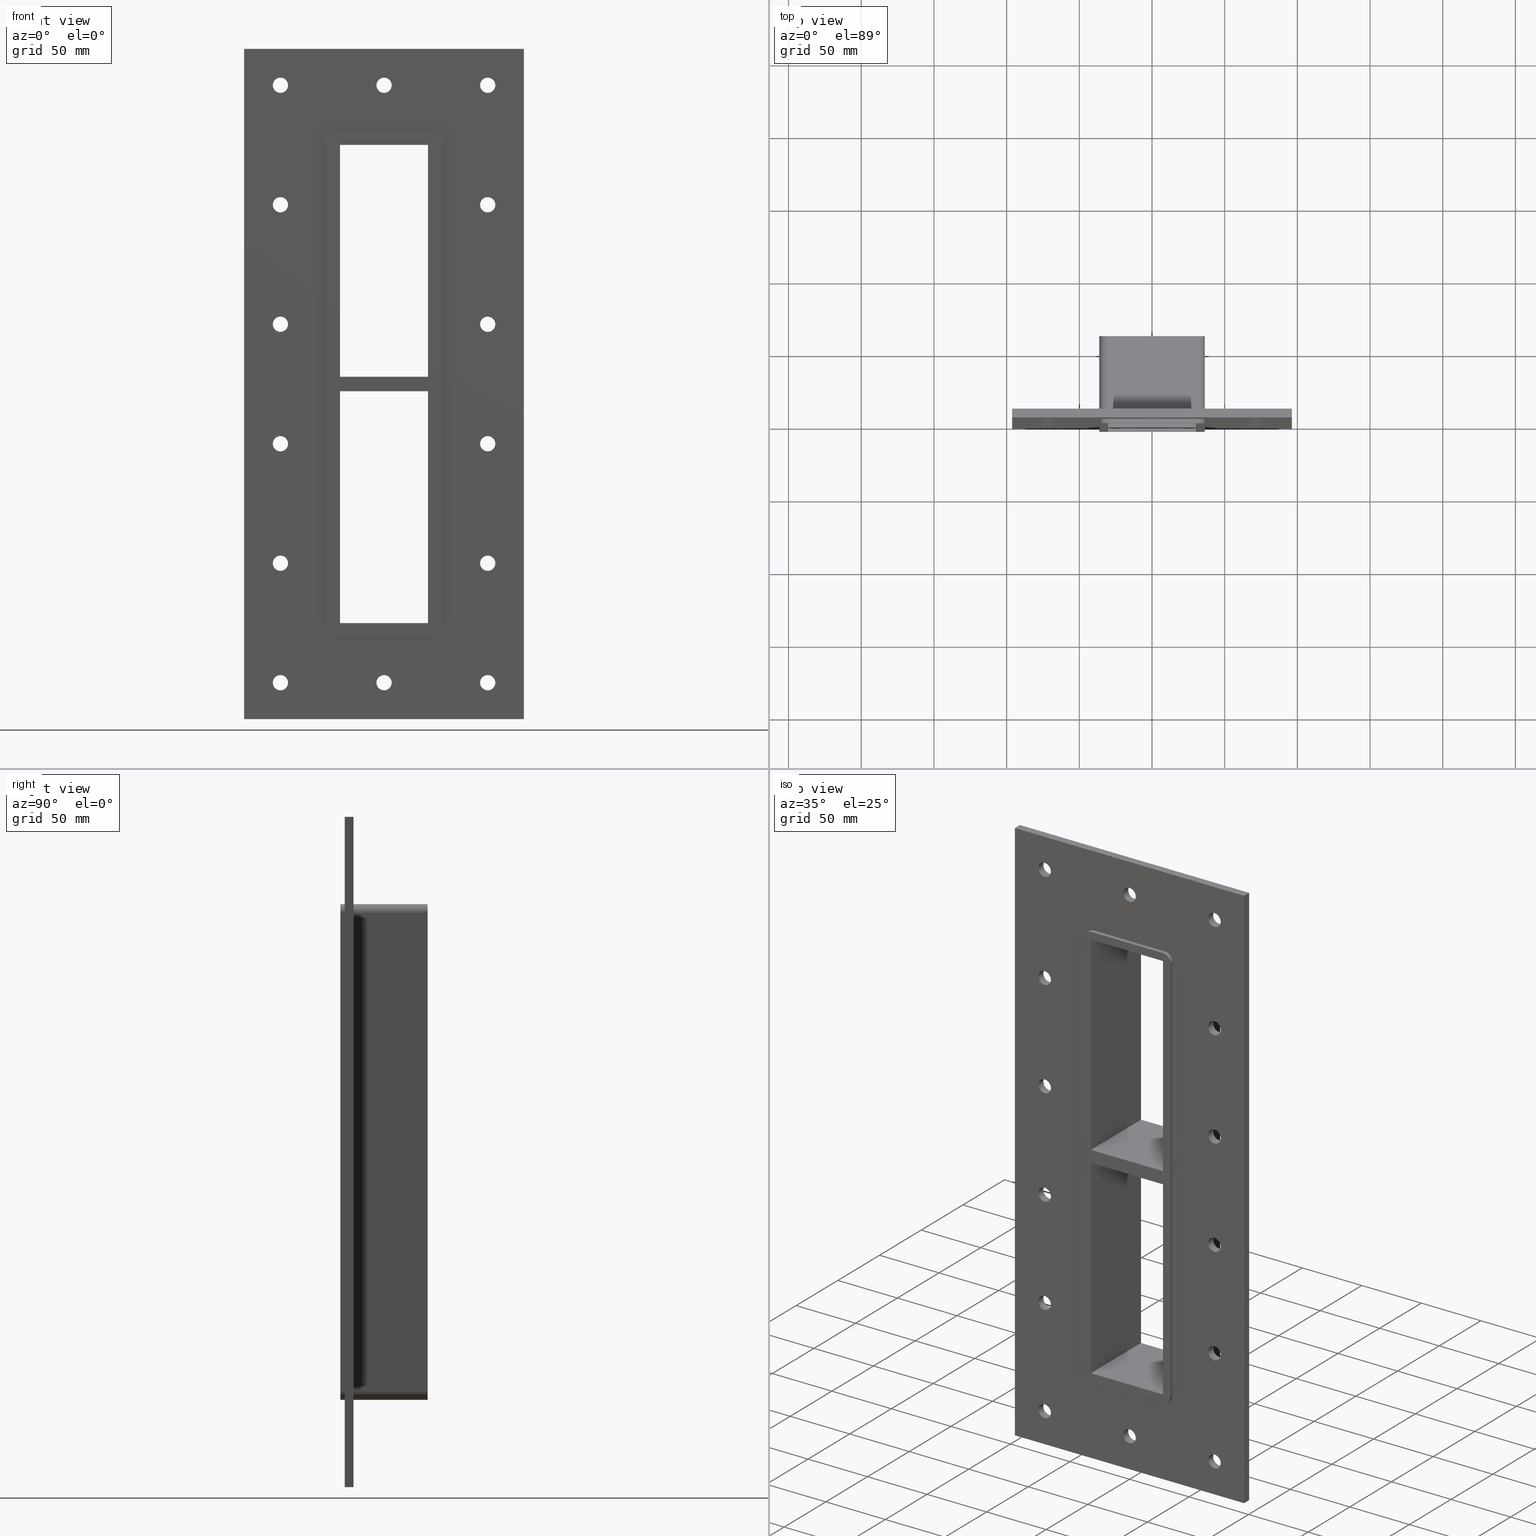
[diagram: canonical four-view strip — front | top / right | iso, engineering-drawing reading convention]
A machine part, canonical four-view strip (front | top / right | iso — engineering-drawing reading convention). The complete STEP part file that produces these views, byte-faithful:
ISO-10303-21;
HEADER;
/****************************************************************
 * Generated by software with PDElib inside                    *
 * PDElib Version v51a, created Wed 11/30/2011                  *
 * ITI Transcendata (http://www.transcendata.com/)              *
 ****************************************************************/
FILE_DESCRIPTION((''),'2;1');
FILE_NAME('N:\\Projects\\Ongoing_Projects\\12403 Transit Designer\\Product-data\\Product Data\\Transit designer Cad Generator\\CreatedFiles\\STEP\\GHM3+3X1.stp','2015-01-12T11:03:11',(''),(''),'Autodesk Inventor 2013','Autodesk Inventor 2013','');
FILE_SCHEMA(('AUTOMOTIVE_DESIGN { 1 0 10303 214 1 1 1 1 }'));
ENDSEC;
DATA;
#5=APPLICATION_CONTEXT('automotive design');
#6=APPLICATION_PROTOCOL_DEFINITION('International Standard','automotive_design',2001,#5);
#7=PRODUCT_CONTEXT('',#5,'mechanical');
#8=PRODUCT('GHM-ISO','GHM-ISO',$,(#7));
#9=PRODUCT_RELATED_PRODUCT_CATEGORY('part',$,(#8));
#10=PRODUCT_DEFINITION_FORMATION('',$,#8);
#11=PRODUCT_DEFINITION_CONTEXT('part definition',#5,'design');
#12=PRODUCT_DEFINITION('',$,#10,#11);
#18=(NAMED_UNIT(*)PLANE_ANGLE_UNIT()SI_UNIT($,.RADIAN.));
#19=DIMENSIONAL_EXPONENTS(0.0,0.0,0.0,0.0,0.0,0.0,0.0);
#20=PLANE_ANGLE_MEASURE_WITH_UNIT(PLANE_ANGLE_MEASURE(0.0174532925),#18);
#24=(CONVERSION_BASED_UNIT('DEGREE',#20)NAMED_UNIT(#19)PLANE_ANGLE_UNIT());
#28=(NAMED_UNIT(*)SI_UNIT($,.STERADIAN.)SOLID_ANGLE_UNIT());
#32=(LENGTH_UNIT()NAMED_UNIT(*)SI_UNIT(.MILLI.,.METRE.));
#34=UNCERTAINTY_MEASURE_WITH_UNIT(LENGTH_MEASURE(0.01),#32,'DISTANCE_ACCURACY_VALUE','');
#36=(GEOMETRIC_REPRESENTATION_CONTEXT(3)GLOBAL_UNCERTAINTY_ASSIGNED_CONTEXT((#34))GLOBAL_UNIT_ASSIGNED_CONTEXT((#24,#28,#32))REPRESENTATION_CONTEXT('None','None'));
#37=AXIS2_PLACEMENT_3D('',#38,#39,#40);
#38=CARTESIAN_POINT('',(0.0,0.0,0.0));
#39=DIRECTION('',(0.0,0.0,1.0));
#40=DIRECTION('',(1.0,0.0,0.0));
#41=SHAPE_REPRESENTATION('',(#37),#36);
#42=PRODUCT_DEFINITION_SHAPE('','',#12);
#43=SHAPE_DEFINITION_REPRESENTATION(#42,#41);
#49=(NAMED_UNIT(*)PLANE_ANGLE_UNIT()SI_UNIT($,.RADIAN.));
#50=DIMENSIONAL_EXPONENTS(0.0,0.0,0.0,0.0,0.0,0.0,0.0);
#51=PLANE_ANGLE_MEASURE_WITH_UNIT(PLANE_ANGLE_MEASURE(0.0174532925),#49);
#55=(CONVERSION_BASED_UNIT('DEGREE',#51)NAMED_UNIT(#50)PLANE_ANGLE_UNIT());
#59=(NAMED_UNIT(*)SI_UNIT($,.STERADIAN.)SOLID_ANGLE_UNIT());
#63=(LENGTH_UNIT()NAMED_UNIT(*)SI_UNIT(.MILLI.,.METRE.));
#65=UNCERTAINTY_MEASURE_WITH_UNIT(LENGTH_MEASURE(0.000001),#63,'DISTANCE_ACCURACY_VALUE','');
#67=(GEOMETRIC_REPRESENTATION_CONTEXT(3)GLOBAL_UNCERTAINTY_ASSIGNED_CONTEXT((#65))GLOBAL_UNIT_ASSIGNED_CONTEXT((#55,#59,#63))REPRESENTATION_CONTEXT('','3D'));
#68=CARTESIAN_POINT('',(-71.250000000000057,503.16721872554467,-205.50000000000006));
#69=DIRECTION('',(0.0,-1.0,0.0));
#70=DIRECTION('',(1.0,0.0,0.0));
#71=AXIS2_PLACEMENT_3D('',#68,#69,#70);
#72=CYLINDRICAL_SURFACE('',#71,5.25);
#73=CARTESIAN_POINT('',(-76.500000000000057,6.000000000000014,-205.50000000000006));
#74=VERTEX_POINT('',#73);
#75=CARTESIAN_POINT('',(-71.250000000000057,6.000000000000014,-205.50000000000006));
#76=DIRECTION('',(0.0,-1.0,0.0));
#77=DIRECTION('',(1.0,0.0,0.0));
#78=AXIS2_PLACEMENT_3D('',#75,#76,#77);
#79=CIRCLE('',#78,5.25);
#80=EDGE_CURVE('',#74,#74,#79,.T.);
#81=ORIENTED_EDGE('',*,*,#80,.F.);
#82=EDGE_LOOP('',(#81));
#83=FACE_OUTER_BOUND('',#82,.T.);
#84=CARTESIAN_POINT('',(-66.000000000000057,0.0,-205.50000000000006));
#85=VERTEX_POINT('',#84);
#86=CARTESIAN_POINT('',(-71.250000000000057,0.0,-205.50000000000006));
#87=DIRECTION('',(0.0,1.0,0.0));
#88=DIRECTION('',(1.0,0.0,0.0));
#89=AXIS2_PLACEMENT_3D('',#86,#87,#88);
#90=CIRCLE('',#89,5.25);
#91=EDGE_CURVE('',#85,#85,#90,.T.);
#92=ORIENTED_EDGE('',*,*,#91,.F.);
#93=EDGE_LOOP('',(#92));
#94=FACE_BOUND('',#93,.T.);
#95=ADVANCED_FACE('',(#83,#94),#72,.F.);
#96=CARTESIAN_POINT('',(71.349999999999937,503.16721872554467,-123.30000000000004));
#97=DIRECTION('',(0.0,-1.0,0.0));
#98=DIRECTION('',(1.0,0.0,0.0));
#99=AXIS2_PLACEMENT_3D('',#96,#97,#98);
#100=CYLINDRICAL_SURFACE('',#99,5.25);
#101=CARTESIAN_POINT('',(66.099999999999937,6.000000000000014,-123.30000000000004));
#102=VERTEX_POINT('',#101);
#103=CARTESIAN_POINT('',(71.349999999999937,6.000000000000014,-123.30000000000004));
#104=DIRECTION('',(0.0,-1.0,0.0));
#105=DIRECTION('',(1.0,0.0,0.0));
#106=AXIS2_PLACEMENT_3D('',#103,#104,#105);
#107=CIRCLE('',#106,5.25);
#108=EDGE_CURVE('',#102,#102,#107,.T.);
#109=ORIENTED_EDGE('',*,*,#108,.F.);
#110=EDGE_LOOP('',(#109));
#111=FACE_OUTER_BOUND('',#110,.T.);
#112=CARTESIAN_POINT('',(76.599999999999952,0.0,-123.30000000000004));
#113=VERTEX_POINT('',#112);
#114=CARTESIAN_POINT('',(71.349999999999937,0.0,-123.30000000000004));
#115=DIRECTION('',(0.0,1.0,0.0));
#116=DIRECTION('',(1.0,0.0,0.0));
#117=AXIS2_PLACEMENT_3D('',#114,#115,#116);
#118=CIRCLE('',#117,5.25);
#119=EDGE_CURVE('',#113,#113,#118,.T.);
#120=ORIENTED_EDGE('',*,*,#119,.F.);
#121=EDGE_LOOP('',(#120));
#122=FACE_BOUND('',#121,.T.);
#123=ADVANCED_FACE('',(#111,#122),#100,.F.);
#124=CARTESIAN_POINT('',(-71.250000000000057,503.16721872554467,-123.30000000000004));
#125=DIRECTION('',(0.0,-1.0,0.0));
#126=DIRECTION('',(1.0,0.0,0.0));
#127=AXIS2_PLACEMENT_3D('',#124,#125,#126);
#128=CYLINDRICAL_SURFACE('',#127,5.25);
#129=CARTESIAN_POINT('',(-76.500000000000057,6.000000000000014,-123.30000000000004));
#130=VERTEX_POINT('',#129);
#131=CARTESIAN_POINT('',(-71.250000000000057,6.000000000000014,-123.30000000000004));
#132=DIRECTION('',(0.0,-1.0,0.0));
#133=DIRECTION('',(1.0,0.0,0.0));
#134=AXIS2_PLACEMENT_3D('',#131,#132,#133);
#135=CIRCLE('',#134,5.25);
#136=EDGE_CURVE('',#130,#130,#135,.T.);
#137=ORIENTED_EDGE('',*,*,#136,.F.);
#138=EDGE_LOOP('',(#137));
#139=FACE_OUTER_BOUND('',#138,.T.);
#140=CARTESIAN_POINT('',(-66.000000000000057,0.0,-123.30000000000004));
#141=VERTEX_POINT('',#140);
#142=CARTESIAN_POINT('',(-71.250000000000057,0.0,-123.30000000000004));
#143=DIRECTION('',(0.0,1.0,0.0));
#144=DIRECTION('',(1.0,0.0,0.0));
#145=AXIS2_PLACEMENT_3D('',#142,#143,#144);
#146=CIRCLE('',#145,5.25);
#147=EDGE_CURVE('',#141,#141,#146,.T.);
#148=ORIENTED_EDGE('',*,*,#147,.F.);
#149=EDGE_LOOP('',(#148));
#150=FACE_BOUND('',#149,.T.);
#151=ADVANCED_FACE('',(#139,#150),#128,.F.);
#152=CARTESIAN_POINT('',(71.349999999999937,503.16721872554467,-41.100000000000051));
#153=DIRECTION('',(0.0,-1.0,0.0));
#154=DIRECTION('',(1.0,0.0,0.0));
#155=AXIS2_PLACEMENT_3D('',#152,#153,#154);
#156=CYLINDRICAL_SURFACE('',#155,5.25);
#157=CARTESIAN_POINT('',(66.099999999999937,6.000000000000014,-41.100000000000051));
#158=VERTEX_POINT('',#157);
#159=CARTESIAN_POINT('',(71.349999999999937,6.000000000000014,-41.100000000000051));
#160=DIRECTION('',(0.0,-1.0,0.0));
#161=DIRECTION('',(1.0,0.0,0.0));
#162=AXIS2_PLACEMENT_3D('',#159,#160,#161);
#163=CIRCLE('',#162,5.25);
#164=EDGE_CURVE('',#158,#158,#163,.T.);
#165=ORIENTED_EDGE('',*,*,#164,.F.);
#166=EDGE_LOOP('',(#165));
#167=FACE_OUTER_BOUND('',#166,.T.);
#168=CARTESIAN_POINT('',(76.599999999999952,0.0,-41.100000000000051));
#169=VERTEX_POINT('',#168);
#170=CARTESIAN_POINT('',(71.349999999999937,0.0,-41.100000000000051));
#171=DIRECTION('',(0.0,1.0,0.0));
#172=DIRECTION('',(1.0,0.0,0.0));
#173=AXIS2_PLACEMENT_3D('',#170,#171,#172);
#174=CIRCLE('',#173,5.25);
#175=EDGE_CURVE('',#169,#169,#174,.T.);
#176=ORIENTED_EDGE('',*,*,#175,.F.);
#177=EDGE_LOOP('',(#176));
#178=FACE_BOUND('',#177,.T.);
#179=ADVANCED_FACE('',(#167,#178),#156,.F.);
#180=CARTESIAN_POINT('',(-71.250000000000057,503.16721872554467,-41.100000000000051));
#181=DIRECTION('',(0.0,-1.0,0.0));
#182=DIRECTION('',(1.0,0.0,0.0));
#183=AXIS2_PLACEMENT_3D('',#180,#181,#182);
#184=CYLINDRICAL_SURFACE('',#183,5.25);
#185=CARTESIAN_POINT('',(-76.500000000000057,6.000000000000014,-41.100000000000051));
#186=VERTEX_POINT('',#185);
#187=CARTESIAN_POINT('',(-71.250000000000057,6.000000000000014,-41.100000000000051));
#188=DIRECTION('',(0.0,-1.0,0.0));
#189=DIRECTION('',(1.0,0.0,0.0));
#190=AXIS2_PLACEMENT_3D('',#187,#188,#189);
#191=CIRCLE('',#190,5.25);
#192=EDGE_CURVE('',#186,#186,#191,.T.);
#193=ORIENTED_EDGE('',*,*,#192,.F.);
#194=EDGE_LOOP('',(#193));
#195=FACE_OUTER_BOUND('',#194,.T.);
#196=CARTESIAN_POINT('',(-66.000000000000057,0.0,-41.100000000000051));
#197=VERTEX_POINT('',#196);
#198=CARTESIAN_POINT('',(-71.250000000000057,0.0,-41.100000000000051));
#199=DIRECTION('',(0.0,1.0,0.0));
#200=DIRECTION('',(1.0,0.0,0.0));
#201=AXIS2_PLACEMENT_3D('',#198,#199,#200);
#202=CIRCLE('',#201,5.25);
#203=EDGE_CURVE('',#197,#197,#202,.T.);
#204=ORIENTED_EDGE('',*,*,#203,.F.);
#205=EDGE_LOOP('',(#204));
#206=FACE_BOUND('',#205,.T.);
#207=ADVANCED_FACE('',(#195,#206),#184,.F.);
#208=CARTESIAN_POINT('',(71.349999999999937,503.16721872554467,41.099999999999994));
#209=DIRECTION('',(0.0,-1.0,0.0));
#210=DIRECTION('',(1.0,0.0,0.0));
#211=AXIS2_PLACEMENT_3D('',#208,#209,#210);
#212=CYLINDRICAL_SURFACE('',#211,5.25);
#213=CARTESIAN_POINT('',(66.099999999999937,6.000000000000014,41.099999999999994));
#214=VERTEX_POINT('',#213);
#215=CARTESIAN_POINT('',(71.349999999999937,6.000000000000014,41.099999999999994));
#216=DIRECTION('',(0.0,-1.0,0.0));
#217=DIRECTION('',(1.0,0.0,0.0));
#218=AXIS2_PLACEMENT_3D('',#215,#216,#217);
#219=CIRCLE('',#218,5.25);
#220=EDGE_CURVE('',#214,#214,#219,.T.);
#221=ORIENTED_EDGE('',*,*,#220,.F.);
#222=EDGE_LOOP('',(#221));
#223=FACE_OUTER_BOUND('',#222,.T.);
#224=CARTESIAN_POINT('',(76.599999999999952,0.0,41.099999999999994));
#225=VERTEX_POINT('',#224);
#226=CARTESIAN_POINT('',(71.349999999999937,0.0,41.099999999999994));
#227=DIRECTION('',(0.0,1.0,0.0));
#228=DIRECTION('',(1.0,0.0,0.0));
#229=AXIS2_PLACEMENT_3D('',#226,#227,#228);
#230=CIRCLE('',#229,5.25);
#231=EDGE_CURVE('',#225,#225,#230,.T.);
#232=ORIENTED_EDGE('',*,*,#231,.F.);
#233=EDGE_LOOP('',(#232));
#234=FACE_BOUND('',#233,.T.);
#235=ADVANCED_FACE('',(#223,#234),#212,.F.);
#236=CARTESIAN_POINT('',(-71.250000000000057,503.16721872554467,41.099999999999994));
#237=DIRECTION('',(0.0,-1.0,0.0));
#238=DIRECTION('',(1.0,0.0,0.0));
#239=AXIS2_PLACEMENT_3D('',#236,#237,#238);
#240=CYLINDRICAL_SURFACE('',#239,5.25);
#241=CARTESIAN_POINT('',(-76.500000000000057,6.000000000000014,41.099999999999994));
#242=VERTEX_POINT('',#241);
#243=CARTESIAN_POINT('',(-71.250000000000057,6.000000000000014,41.099999999999994));
#244=DIRECTION('',(0.0,-1.0,0.0));
#245=DIRECTION('',(1.0,0.0,0.0));
#246=AXIS2_PLACEMENT_3D('',#243,#244,#245);
#247=CIRCLE('',#246,5.25);
#248=EDGE_CURVE('',#242,#242,#247,.T.);
#249=ORIENTED_EDGE('',*,*,#248,.F.);
#250=EDGE_LOOP('',(#249));
#251=FACE_OUTER_BOUND('',#250,.T.);
#252=CARTESIAN_POINT('',(-66.000000000000057,0.0,41.099999999999994));
#253=VERTEX_POINT('',#252);
#254=CARTESIAN_POINT('',(-71.250000000000057,0.0,41.099999999999994));
#255=DIRECTION('',(0.0,1.0,0.0));
#256=DIRECTION('',(1.0,0.0,0.0));
#257=AXIS2_PLACEMENT_3D('',#254,#255,#256);
#258=CIRCLE('',#257,5.25);
#259=EDGE_CURVE('',#253,#253,#258,.T.);
#260=ORIENTED_EDGE('',*,*,#259,.F.);
#261=EDGE_LOOP('',(#260));
#262=FACE_BOUND('',#261,.T.);
#263=ADVANCED_FACE('',(#251,#262),#240,.F.);
#264=CARTESIAN_POINT('',(71.349999999999937,503.16721872554467,123.3));
#265=DIRECTION('',(0.0,-1.0,0.0));
#266=DIRECTION('',(1.0,0.0,0.0));
#267=AXIS2_PLACEMENT_3D('',#264,#265,#266);
#268=CYLINDRICAL_SURFACE('',#267,5.25);
#269=CARTESIAN_POINT('',(66.099999999999937,6.000000000000014,123.3));
#270=VERTEX_POINT('',#269);
#271=CARTESIAN_POINT('',(71.349999999999937,6.000000000000014,123.3));
#272=DIRECTION('',(0.0,-1.0,0.0));
#273=DIRECTION('',(1.0,0.0,0.0));
#274=AXIS2_PLACEMENT_3D('',#271,#272,#273);
#275=CIRCLE('',#274,5.25);
#276=EDGE_CURVE('',#270,#270,#275,.T.);
#277=ORIENTED_EDGE('',*,*,#276,.F.);
#278=EDGE_LOOP('',(#277));
#279=FACE_OUTER_BOUND('',#278,.T.);
#280=CARTESIAN_POINT('',(76.599999999999952,0.0,123.3));
#281=VERTEX_POINT('',#280);
#282=CARTESIAN_POINT('',(71.349999999999937,0.0,123.3));
#283=DIRECTION('',(0.0,1.0,0.0));
#284=DIRECTION('',(1.0,0.0,0.0));
#285=AXIS2_PLACEMENT_3D('',#282,#283,#284);
#286=CIRCLE('',#285,5.25);
#287=EDGE_CURVE('',#281,#281,#286,.T.);
#288=ORIENTED_EDGE('',*,*,#287,.F.);
#289=EDGE_LOOP('',(#288));
#290=FACE_BOUND('',#289,.T.);
#291=ADVANCED_FACE('',(#279,#290),#268,.F.);
#292=CARTESIAN_POINT('',(-71.250000000000057,503.16721872554467,123.3));
#293=DIRECTION('',(0.0,-1.0,0.0));
#294=DIRECTION('',(1.0,0.0,0.0));
#295=AXIS2_PLACEMENT_3D('',#292,#293,#294);
#296=CYLINDRICAL_SURFACE('',#295,5.25);
#297=CARTESIAN_POINT('',(-76.500000000000057,6.000000000000014,123.3));
#298=VERTEX_POINT('',#297);
#299=CARTESIAN_POINT('',(-71.250000000000057,6.000000000000014,123.3));
#300=DIRECTION('',(0.0,-1.0,0.0));
#301=DIRECTION('',(1.0,0.0,0.0));
#302=AXIS2_PLACEMENT_3D('',#299,#300,#301);
#303=CIRCLE('',#302,5.25);
#304=EDGE_CURVE('',#298,#298,#303,.T.);
#305=ORIENTED_EDGE('',*,*,#304,.F.);
#306=EDGE_LOOP('',(#305));
#307=FACE_OUTER_BOUND('',#306,.T.);
#308=CARTESIAN_POINT('',(-66.000000000000057,0.0,123.3));
#309=VERTEX_POINT('',#308);
#310=CARTESIAN_POINT('',(-71.250000000000057,0.0,123.3));
#311=DIRECTION('',(0.0,1.0,0.0));
#312=DIRECTION('',(1.0,0.0,0.0));
#313=AXIS2_PLACEMENT_3D('',#310,#311,#312);
#314=CIRCLE('',#313,5.25);
#315=EDGE_CURVE('',#309,#309,#314,.T.);
#316=ORIENTED_EDGE('',*,*,#315,.F.);
#317=EDGE_LOOP('',(#316));
#318=FACE_BOUND('',#317,.T.);
#319=ADVANCED_FACE('',(#307,#318),#296,.F.);
#320=CARTESIAN_POINT('',(0.049999999999946,503.16721872554467,205.5));
#321=DIRECTION('',(0.0,-1.0,0.0));
#322=DIRECTION('',(1.0,0.0,0.0));
#323=AXIS2_PLACEMENT_3D('',#320,#321,#322);
#324=CYLINDRICAL_SURFACE('',#323,5.25);
#325=CARTESIAN_POINT('',(-5.200000000000058,6.000000000000014,205.5));
#326=VERTEX_POINT('',#325);
#327=CARTESIAN_POINT('',(0.049999999999946,6.000000000000014,205.5));
#328=DIRECTION('',(0.0,-1.0,0.0));
#329=DIRECTION('',(1.0,0.0,0.0));
#330=AXIS2_PLACEMENT_3D('',#327,#328,#329);
#331=CIRCLE('',#330,5.25);
#332=EDGE_CURVE('',#326,#326,#331,.T.);
#333=ORIENTED_EDGE('',*,*,#332,.F.);
#334=EDGE_LOOP('',(#333));
#335=FACE_OUTER_BOUND('',#334,.T.);
#336=CARTESIAN_POINT('',(5.299999999999949,0.0,205.5));
#337=VERTEX_POINT('',#336);
#338=CARTESIAN_POINT('',(0.049999999999946,0.0,205.5));
#339=DIRECTION('',(0.0,1.0,0.0));
#340=DIRECTION('',(1.0,0.0,0.0));
#341=AXIS2_PLACEMENT_3D('',#338,#339,#340);
#342=CIRCLE('',#341,5.25);
#343=EDGE_CURVE('',#337,#337,#342,.T.);
#344=ORIENTED_EDGE('',*,*,#343,.F.);
#345=EDGE_LOOP('',(#344));
#346=FACE_BOUND('',#345,.T.);
#347=ADVANCED_FACE('',(#335,#346),#324,.F.);
#348=CARTESIAN_POINT('',(0.049999999999946,503.16721872554467,-205.5));
#349=DIRECTION('',(0.0,-1.0,0.0));
#350=DIRECTION('',(1.0,0.0,0.0));
#351=AXIS2_PLACEMENT_3D('',#348,#349,#350);
#352=CYLINDRICAL_SURFACE('',#351,5.25);
#353=CARTESIAN_POINT('',(-5.200000000000058,6.000000000000014,-205.5));
#354=VERTEX_POINT('',#353);
#355=CARTESIAN_POINT('',(0.049999999999946,6.000000000000014,-205.5));
#356=DIRECTION('',(0.0,-1.0,0.0));
#357=DIRECTION('',(1.0,0.0,0.0));
#358=AXIS2_PLACEMENT_3D('',#355,#356,#357);
#359=CIRCLE('',#358,5.25);
#360=EDGE_CURVE('',#354,#354,#359,.T.);
#361=ORIENTED_EDGE('',*,*,#360,.F.);
#362=EDGE_LOOP('',(#361));
#363=FACE_OUTER_BOUND('',#362,.T.);
#364=CARTESIAN_POINT('',(5.299999999999949,0.0,-205.5));
#365=VERTEX_POINT('',#364);
#366=CARTESIAN_POINT('',(0.049999999999946,0.0,-205.5));
#367=DIRECTION('',(0.0,1.0,0.0));
#368=DIRECTION('',(1.0,0.0,0.0));
#369=AXIS2_PLACEMENT_3D('',#366,#367,#368);
#370=CIRCLE('',#369,5.25);
#371=EDGE_CURVE('',#365,#365,#370,.T.);
#372=ORIENTED_EDGE('',*,*,#371,.F.);
#373=EDGE_LOOP('',(#372));
#374=FACE_BOUND('',#373,.T.);
#375=ADVANCED_FACE('',(#363,#374),#352,.F.);
#376=CARTESIAN_POINT('',(71.349999999999937,503.16721872554467,-205.5));
#377=DIRECTION('',(0.0,-1.0,0.0));
#378=DIRECTION('',(1.0,0.0,0.0));
#379=AXIS2_PLACEMENT_3D('',#376,#377,#378);
#380=CYLINDRICAL_SURFACE('',#379,5.25);
#381=CARTESIAN_POINT('',(66.099999999999937,6.000000000000014,-205.5));
#382=VERTEX_POINT('',#381);
#383=CARTESIAN_POINT('',(71.349999999999937,6.000000000000014,-205.5));
#384=DIRECTION('',(0.0,-1.0,0.0));
#385=DIRECTION('',(1.0,0.0,0.0));
#386=AXIS2_PLACEMENT_3D('',#383,#384,#385);
#387=CIRCLE('',#386,5.25);
#388=EDGE_CURVE('',#382,#382,#387,.T.);
#389=ORIENTED_EDGE('',*,*,#388,.F.);
#390=EDGE_LOOP('',(#389));
#391=FACE_OUTER_BOUND('',#390,.T.);
#392=CARTESIAN_POINT('',(76.599999999999952,0.0,-205.5));
#393=VERTEX_POINT('',#392);
#394=CARTESIAN_POINT('',(71.349999999999937,0.0,-205.5));
#395=DIRECTION('',(0.0,1.0,0.0));
#396=DIRECTION('',(1.0,0.0,0.0));
#397=AXIS2_PLACEMENT_3D('',#394,#395,#396);
#398=CIRCLE('',#397,5.25);
#399=EDGE_CURVE('',#393,#393,#398,.T.);
#400=ORIENTED_EDGE('',*,*,#399,.F.);
#401=EDGE_LOOP('',(#400));
#402=FACE_BOUND('',#401,.T.);
#403=ADVANCED_FACE('',(#391,#402),#380,.F.);
#404=CARTESIAN_POINT('',(-71.250000000000057,503.16721872554467,205.5));
#405=DIRECTION('',(0.0,-1.0,0.0));
#406=DIRECTION('',(1.0,0.0,0.0));
#407=AXIS2_PLACEMENT_3D('',#404,#405,#406);
#408=CYLINDRICAL_SURFACE('',#407,5.25);
#409=CARTESIAN_POINT('',(-76.500000000000057,6.000000000000014,205.5));
#410=VERTEX_POINT('',#409);
#411=CARTESIAN_POINT('',(-71.250000000000057,6.000000000000014,205.5));
#412=DIRECTION('',(0.0,-1.0,0.0));
#413=DIRECTION('',(1.0,0.0,0.0));
#414=AXIS2_PLACEMENT_3D('',#411,#412,#413);
#415=CIRCLE('',#414,5.25);
#416=EDGE_CURVE('',#410,#410,#415,.T.);
#417=ORIENTED_EDGE('',*,*,#416,.F.);
#418=EDGE_LOOP('',(#417));
#419=FACE_OUTER_BOUND('',#418,.T.);
#420=CARTESIAN_POINT('',(-66.000000000000057,0.0,205.5));
#421=VERTEX_POINT('',#420);
#422=CARTESIAN_POINT('',(-71.250000000000057,0.0,205.5));
#423=DIRECTION('',(0.0,1.0,0.0));
#424=DIRECTION('',(1.0,0.0,0.0));
#425=AXIS2_PLACEMENT_3D('',#422,#423,#424);
#426=CIRCLE('',#425,5.25);
#427=EDGE_CURVE('',#421,#421,#426,.T.);
#428=ORIENTED_EDGE('',*,*,#427,.F.);
#429=EDGE_LOOP('',(#428));
#430=FACE_BOUND('',#429,.T.);
#431=ADVANCED_FACE('',(#419,#430),#408,.F.);
#432=CARTESIAN_POINT('',(71.349999999999937,503.16721872554467,205.5));
#433=DIRECTION('',(0.0,-1.0,0.0));
#434=DIRECTION('',(1.0,0.0,0.0));
#435=AXIS2_PLACEMENT_3D('',#432,#433,#434);
#436=CYLINDRICAL_SURFACE('',#435,5.25);
#437=CARTESIAN_POINT('',(66.099999999999937,6.000000000000014,205.5));
#438=VERTEX_POINT('',#437);
#439=CARTESIAN_POINT('',(71.349999999999937,6.000000000000014,205.5));
#440=DIRECTION('',(0.0,-1.0,0.0));
#441=DIRECTION('',(1.0,0.0,0.0));
#442=AXIS2_PLACEMENT_3D('',#439,#440,#441);
#443=CIRCLE('',#442,5.25);
#444=EDGE_CURVE('',#438,#438,#443,.T.);
#445=ORIENTED_EDGE('',*,*,#444,.F.);
#446=EDGE_LOOP('',(#445));
#447=FACE_OUTER_BOUND('',#446,.T.);
#448=CARTESIAN_POINT('',(76.599999999999952,0.0,205.5));
#449=VERTEX_POINT('',#448);
#450=CARTESIAN_POINT('',(71.349999999999937,0.0,205.5));
#451=DIRECTION('',(0.0,1.0,0.0));
#452=DIRECTION('',(1.0,0.0,0.0));
#453=AXIS2_PLACEMENT_3D('',#450,#451,#452);
#454=CIRCLE('',#453,5.25);
#455=EDGE_CURVE('',#449,#449,#454,.T.);
#456=ORIENTED_EDGE('',*,*,#455,.F.);
#457=EDGE_LOOP('',(#456));
#458=FACE_BOUND('',#457,.T.);
#459=ADVANCED_FACE('',(#447,#458),#436,.F.);
#460=CARTESIAN_POINT('',(30.249999999996362,-3.0,-5.00000000001139));
#461=DIRECTION('',(0.0,0.0,-1.0));
#462=DIRECTION('',(-1.0,0.0,0.0));
#463=AXIS2_PLACEMENT_3D('',#460,#461,#462);
#464=PLANE('',#463);
#465=CARTESIAN_POINT('',(30.249999999996362,-3.0,-5.00000000001139));
#466=VERTEX_POINT('',#465);
#467=CARTESIAN_POINT('',(-30.249999999999709,-3.0,-5.000000000011369));
#468=VERTEX_POINT('',#467);
#469=CARTESIAN_POINT('',(30.249999999996362,-3.0,-5.00000000001139));
#470=DIRECTION('',(-1.0,0.0,0.0));
#471=VECTOR('',#470,60.499999999996071);
#472=LINE('',#469,#471);
#473=EDGE_CURVE('',#466,#468,#472,.T.);
#474=ORIENTED_EDGE('',*,*,#473,.T.);
#475=CARTESIAN_POINT('',(-30.249999999999709,57.0,-5.000000000011369));
#476=VERTEX_POINT('',#475);
#477=CARTESIAN_POINT('',(-30.25,57.000000000000007,-5.000000000011376));
#478=DIRECTION('',(0.0,-1.0,0.0));
#479=VECTOR('',#478,60.000000000000007);
#480=LINE('',#477,#479);
#481=EDGE_CURVE('',#476,#468,#480,.T.);
#482=ORIENTED_EDGE('',*,*,#481,.F.);
#483=CARTESIAN_POINT('',(30.249999999996362,57.0,-5.000000000011391));
#484=VERTEX_POINT('',#483);
#485=CARTESIAN_POINT('',(30.249999999996362,57.0,-5.00000000001139));
#486=DIRECTION('',(-1.0,0.0,0.0));
#487=VECTOR('',#486,60.499999999996071);
#488=LINE('',#485,#487);
#489=EDGE_CURVE('',#484,#476,#488,.T.);
#490=ORIENTED_EDGE('',*,*,#489,.F.);
#491=CARTESIAN_POINT('',(30.25,-3.0,-5.000000000011395));
#492=DIRECTION('',(0.0,1.0,0.0));
#493=VECTOR('',#492,60.000000000000007);
#494=LINE('',#491,#493);
#495=EDGE_CURVE('',#466,#484,#494,.T.);
#496=ORIENTED_EDGE('',*,*,#495,.F.);
#497=EDGE_LOOP('',(#474,#482,#490,#496));
#498=FACE_OUTER_BOUND('',#497,.T.);
#499=ADVANCED_FACE('',(#498),#464,.T.);
#500=CARTESIAN_POINT('',(-30.249999999999709,-3.0,5.0));
#501=DIRECTION('',(0.0,0.0,1.0));
#502=DIRECTION('',(1.0,0.0,0.0));
#503=AXIS2_PLACEMENT_3D('',#500,#501,#502);
#504=PLANE('',#503);
#505=CARTESIAN_POINT('',(-30.249999999999709,-3.0,5.0));
#506=VERTEX_POINT('',#505);
#507=CARTESIAN_POINT('',(30.249999999999901,-3.0,5.0));
#508=VERTEX_POINT('',#507);
#509=CARTESIAN_POINT('',(-30.249999999999709,-3.0,5.0));
#510=DIRECTION('',(1.0,0.0,0.0));
#511=VECTOR('',#510,60.499999999999616);
#512=LINE('',#509,#511);
#513=EDGE_CURVE('',#506,#508,#512,.T.);
#514=ORIENTED_EDGE('',*,*,#513,.T.);
#515=CARTESIAN_POINT('',(30.249999999999908,57.0,5.0));
#516=VERTEX_POINT('',#515);
#517=CARTESIAN_POINT('',(30.249999999999993,57.000000000000007,5.0));
#518=DIRECTION('',(0.0,-1.0,0.0));
#519=VECTOR('',#518,60.000000000000007);
#520=LINE('',#517,#519);
#521=EDGE_CURVE('',#516,#508,#520,.T.);
#522=ORIENTED_EDGE('',*,*,#521,.F.);
#523=CARTESIAN_POINT('',(-30.249999999999709,57.0,5.0));
#524=VERTEX_POINT('',#523);
#525=CARTESIAN_POINT('',(-30.249999999999709,57.0,5.0));
#526=DIRECTION('',(1.0,0.0,0.0));
#527=VECTOR('',#526,60.499999999999616);
#528=LINE('',#525,#527);
#529=EDGE_CURVE('',#524,#516,#528,.T.);
#530=ORIENTED_EDGE('',*,*,#529,.F.);
#531=CARTESIAN_POINT('',(-30.25,-3.0,5.0));
#532=DIRECTION('',(0.0,1.0,0.0));
#533=VECTOR('',#532,60.000000000000007);
#534=LINE('',#531,#533);
#535=EDGE_CURVE('',#506,#524,#534,.T.);
#536=ORIENTED_EDGE('',*,*,#535,.F.);
#537=EDGE_LOOP('',(#514,#522,#530,#536));
#538=FACE_OUTER_BOUND('',#537,.T.);
#539=ADVANCED_FACE('',(#538),#504,.T.);
#540=CARTESIAN_POINT('',(-30.25,0.0,-164.50000000000003));
#541=DIRECTION('',(-1.0,0.0,0.0));
#542=DIRECTION('',(0.0,0.0,1.0));
#543=AXIS2_PLACEMENT_3D('',#540,#541,#542);
#544=PLANE('',#543);
#545=ORIENTED_EDGE('',*,*,#535,.T.);
#546=CARTESIAN_POINT('',(-30.25,57.0,164.50000000000003));
#547=VERTEX_POINT('',#546);
#548=CARTESIAN_POINT('',(-30.25,57.0,164.50000000000006));
#549=DIRECTION('',(0.0,0.0,-1.0));
#550=VECTOR('',#549,159.50000000000006);
#551=LINE('',#548,#550);
#552=EDGE_CURVE('',#547,#524,#551,.T.);
#553=ORIENTED_EDGE('',*,*,#552,.F.);
#554=CARTESIAN_POINT('',(-30.25,-3.0,164.50000000000003));
#555=VERTEX_POINT('',#554);
#556=CARTESIAN_POINT('',(-30.25,-3.0,164.50000000000003));
#557=DIRECTION('',(0.0,1.0,0.0));
#558=VECTOR('',#557,60.0);
#559=LINE('',#556,#558);
#560=EDGE_CURVE('',#555,#547,#559,.T.);
#561=ORIENTED_EDGE('',*,*,#560,.F.);
#562=CARTESIAN_POINT('',(-30.25,-3.0,5.0));
#563=DIRECTION('',(0.0,0.0,1.0));
#564=VECTOR('',#563,159.50000000000006);
#565=LINE('',#562,#564);
#566=EDGE_CURVE('',#506,#555,#565,.T.);
#567=ORIENTED_EDGE('',*,*,#566,.F.);
#568=EDGE_LOOP('',(#545,#553,#561,#567));
#569=FACE_OUTER_BOUND('',#568,.T.);
#570=ADVANCED_FACE('',(#569),#544,.F.);
#571=CARTESIAN_POINT('',(30.25,0.0,164.50000000000003));
#572=DIRECTION('',(1.0,0.0,0.0));
#573=DIRECTION('',(0.0,0.0,-1.0));
#574=AXIS2_PLACEMENT_3D('',#571,#572,#573);
#575=PLANE('',#574);
#576=ORIENTED_EDGE('',*,*,#495,.T.);
#577=CARTESIAN_POINT('',(30.25,57.0,-164.50000000000003));
#578=VERTEX_POINT('',#577);
#579=CARTESIAN_POINT('',(30.25,57.0,-164.50000000000003));
#580=DIRECTION('',(0.0,0.0,1.0));
#581=VECTOR('',#580,159.49999999998863);
#582=LINE('',#579,#581);
#583=EDGE_CURVE('',#578,#484,#582,.T.);
#584=ORIENTED_EDGE('',*,*,#583,.F.);
#585=CARTESIAN_POINT('',(30.25,-3.0,-164.50000000000003));
#586=VERTEX_POINT('',#585);
#587=CARTESIAN_POINT('',(30.25,56.999999999999993,-164.50000000000003));
#588=DIRECTION('',(0.0,-1.0,0.0));
#589=VECTOR('',#588,59.999999999999993);
#590=LINE('',#587,#589);
#591=EDGE_CURVE('',#578,#586,#590,.T.);
#592=ORIENTED_EDGE('',*,*,#591,.T.);
#593=CARTESIAN_POINT('',(30.25,-3.0,-5.000000000011397));
#594=DIRECTION('',(0.0,0.0,-1.0));
#595=VECTOR('',#594,159.49999999998863);
#596=LINE('',#593,#595);
#597=EDGE_CURVE('',#466,#586,#596,.T.);
#598=ORIENTED_EDGE('',*,*,#597,.F.);
#599=EDGE_LOOP('',(#576,#584,#592,#598));
#600=FACE_OUTER_BOUND('',#599,.T.);
#601=ADVANCED_FACE('',(#600),#575,.F.);
#602=CARTESIAN_POINT('',(30.25,0.0,164.50000000000003));
#603=DIRECTION('',(1.0,0.0,0.0));
#604=DIRECTION('',(0.0,0.0,-1.0));
#605=AXIS2_PLACEMENT_3D('',#602,#603,#604);
#606=PLANE('',#605);
#607=ORIENTED_EDGE('',*,*,#521,.T.);
#608=CARTESIAN_POINT('',(30.25,-3.0,164.50000000000003));
#609=VERTEX_POINT('',#608);
#610=CARTESIAN_POINT('',(30.25,-3.0,164.50000000000003));
#611=DIRECTION('',(0.0,0.0,-1.0));
#612=VECTOR('',#611,159.50000000000003);
#613=LINE('',#610,#612);
#614=EDGE_CURVE('',#609,#508,#613,.T.);
#615=ORIENTED_EDGE('',*,*,#614,.F.);
#616=CARTESIAN_POINT('',(30.25,57.0,164.50000000000003));
#617=VERTEX_POINT('',#616);
#618=CARTESIAN_POINT('',(30.25,-3.0,164.50000000000003));
#619=DIRECTION('',(0.0,1.0,0.0));
#620=VECTOR('',#619,60.0);
#621=LINE('',#618,#620);
#622=EDGE_CURVE('',#609,#617,#621,.T.);
#623=ORIENTED_EDGE('',*,*,#622,.T.);
#624=CARTESIAN_POINT('',(30.25,57.0,5.0));
#625=DIRECTION('',(0.0,0.0,1.0));
#626=VECTOR('',#625,159.50000000000003);
#627=LINE('',#624,#626);
#628=EDGE_CURVE('',#516,#617,#627,.T.);
#629=ORIENTED_EDGE('',*,*,#628,.F.);
#630=EDGE_LOOP('',(#607,#615,#623,#629));
#631=FACE_OUTER_BOUND('',#630,.T.);
#632=ADVANCED_FACE('',(#631),#606,.F.);
#633=CARTESIAN_POINT('',(0.0,6.000000000000001,1.905472E-014));
#634=DIRECTION('',(0.0,1.0,0.0));
#635=DIRECTION('',(0.0,0.0,1.0));
#636=AXIS2_PLACEMENT_3D('',#633,#634,#635);
#637=PLANE('',#636);
#638=CARTESIAN_POINT('',(-96.25,6.000000000000001,230.50000000000006));
#639=VERTEX_POINT('',#638);
#640=CARTESIAN_POINT('',(96.25,6.000000000000001,230.50000000000006));
#641=VERTEX_POINT('',#640);
#642=CARTESIAN_POINT('',(-96.25,6.000000000000001,230.50000000000006));
#643=DIRECTION('',(1.0,0.0,0.0));
#644=VECTOR('',#643,192.5);
#645=LINE('',#642,#644);
#646=EDGE_CURVE('',#639,#641,#645,.T.);
#647=ORIENTED_EDGE('',*,*,#646,.T.);
#648=CARTESIAN_POINT('',(96.25,6.000000000000001,-230.50000000000006));
#649=VERTEX_POINT('',#648);
#650=CARTESIAN_POINT('',(96.25,6.000000000000001,230.50000000000006));
#651=DIRECTION('',(0.0,0.0,-1.0));
#652=VECTOR('',#651,461.00000000000011);
#653=LINE('',#650,#652);
#654=EDGE_CURVE('',#641,#649,#653,.T.);
#655=ORIENTED_EDGE('',*,*,#654,.T.);
#656=CARTESIAN_POINT('',(-96.25,6.000000000000001,-230.50000000000006));
#657=VERTEX_POINT('',#656);
#658=CARTESIAN_POINT('',(96.25,6.000000000000001,-230.5));
#659=DIRECTION('',(-1.0,0.0,0.0));
#660=VECTOR('',#659,192.5);
#661=LINE('',#658,#660);
#662=EDGE_CURVE('',#649,#657,#661,.T.);
#663=ORIENTED_EDGE('',*,*,#662,.T.);
#664=CARTESIAN_POINT('',(-96.25,6.000000000000001,-230.5));
#665=DIRECTION('',(0.0,0.0,1.0));
#666=VECTOR('',#665,461.00000000000011);
#667=LINE('',#664,#666);
#668=EDGE_CURVE('',#657,#639,#667,.T.);
#669=ORIENTED_EDGE('',*,*,#668,.T.);
#670=EDGE_LOOP('',(#647,#655,#663,#669));
#671=FACE_OUTER_BOUND('',#670,.T.);
#672=ORIENTED_EDGE('',*,*,#80,.T.);
#673=EDGE_LOOP('',(#672));
#674=FACE_BOUND('',#673,.T.);
#675=ORIENTED_EDGE('',*,*,#108,.T.);
#676=EDGE_LOOP('',(#675));
#677=FACE_BOUND('',#676,.T.);
#678=ORIENTED_EDGE('',*,*,#136,.T.);
#679=EDGE_LOOP('',(#678));
#680=FACE_BOUND('',#679,.T.);
#681=ORIENTED_EDGE('',*,*,#164,.T.);
#682=EDGE_LOOP('',(#681));
#683=FACE_BOUND('',#682,.T.);
#684=ORIENTED_EDGE('',*,*,#192,.T.);
#685=EDGE_LOOP('',(#684));
#686=FACE_BOUND('',#685,.T.);
#687=ORIENTED_EDGE('',*,*,#220,.T.);
#688=EDGE_LOOP('',(#687));
#689=FACE_BOUND('',#688,.T.);
#690=ORIENTED_EDGE('',*,*,#248,.T.);
#691=EDGE_LOOP('',(#690));
#692=FACE_BOUND('',#691,.T.);
#693=ORIENTED_EDGE('',*,*,#276,.T.);
#694=EDGE_LOOP('',(#693));
#695=FACE_BOUND('',#694,.T.);
#696=ORIENTED_EDGE('',*,*,#304,.T.);
#697=EDGE_LOOP('',(#696));
#698=FACE_BOUND('',#697,.T.);
#699=ORIENTED_EDGE('',*,*,#332,.T.);
#700=EDGE_LOOP('',(#699));
#701=FACE_BOUND('',#700,.T.);
#702=ORIENTED_EDGE('',*,*,#360,.T.);
#703=EDGE_LOOP('',(#702));
#704=FACE_BOUND('',#703,.T.);
#705=ORIENTED_EDGE('',*,*,#388,.T.);
#706=EDGE_LOOP('',(#705));
#707=FACE_BOUND('',#706,.T.);
#708=ORIENTED_EDGE('',*,*,#416,.T.);
#709=EDGE_LOOP('',(#708));
#710=FACE_BOUND('',#709,.T.);
#711=ORIENTED_EDGE('',*,*,#444,.T.);
#712=EDGE_LOOP('',(#711));
#713=FACE_BOUND('',#712,.T.);
#714=CARTESIAN_POINT('',(-30.250000000000004,6.000000000000001,-170.49999999999997));
#715=VERTEX_POINT('',#714);
#716=CARTESIAN_POINT('',(-36.250000000000007,6.000000000000001,-164.49999999999994));
#717=VERTEX_POINT('',#716);
#718=CARTESIAN_POINT('',(-30.250000000000004,6.000000000000001,-164.49999999999994));
#719=DIRECTION('',(0.0,1.0,0.0));
#720=DIRECTION('',(-0.707106781186546,0.0,-0.707106781186549));
#721=AXIS2_PLACEMENT_3D('',#718,#719,#720);
#722=CIRCLE('',#721,6.000000000000001);
#723=EDGE_CURVE('',#715,#717,#722,.T.);
#724=ORIENTED_EDGE('',*,*,#723,.F.);
#725=CARTESIAN_POINT('',(30.250000000000004,6.000000000000001,-170.49999999999997));
#726=VERTEX_POINT('',#725);
#727=CARTESIAN_POINT('',(30.250000000000007,6.000000000000001,-170.49999999999997));
#728=DIRECTION('',(-1.0,0.0,0.0));
#729=VECTOR('',#728,60.5);
#730=LINE('',#727,#729);
#731=EDGE_CURVE('',#726,#715,#730,.T.);
#732=ORIENTED_EDGE('',*,*,#731,.F.);
#733=CARTESIAN_POINT('',(36.250000000000007,6.000000000000001,-164.49999999999994));
#734=VERTEX_POINT('',#733);
#735=CARTESIAN_POINT('',(30.250000000000004,6.000000000000001,-164.49999999999994));
#736=DIRECTION('',(0.0,1.0,0.0));
#737=DIRECTION('',(0.707106781186546,0.0,-0.707106781186549));
#738=AXIS2_PLACEMENT_3D('',#735,#736,#737);
#739=CIRCLE('',#738,6.000000000000001);
#740=EDGE_CURVE('',#734,#726,#739,.T.);
#741=ORIENTED_EDGE('',*,*,#740,.F.);
#742=CARTESIAN_POINT('',(36.250000000000007,6.000000000000001,164.50000000000003));
#743=VERTEX_POINT('',#742);
#744=CARTESIAN_POINT('',(36.250000000000007,6.000000000000001,164.50000000000003));
#745=DIRECTION('',(0.0,0.0,-1.0));
#746=VECTOR('',#745,329.0);
#747=LINE('',#744,#746);
#748=EDGE_CURVE('',#743,#734,#747,.T.);
#749=ORIENTED_EDGE('',*,*,#748,.F.);
#750=CARTESIAN_POINT('',(30.250000000000004,6.000000000000001,170.50000000000006));
#751=VERTEX_POINT('',#750);
#752=CARTESIAN_POINT('',(30.250000000000004,6.000000000000001,164.50000000000003));
#753=DIRECTION('',(0.0,1.0,0.0));
#754=DIRECTION('',(0.707106781186546,0.0,0.707106781186549));
#755=AXIS2_PLACEMENT_3D('',#752,#753,#754);
#756=CIRCLE('',#755,6.000000000000001);
#757=EDGE_CURVE('',#751,#743,#756,.T.);
#758=ORIENTED_EDGE('',*,*,#757,.F.);
#759=CARTESIAN_POINT('',(-30.250000000000004,6.000000000000001,170.50000000000006));
#760=VERTEX_POINT('',#759);
#761=CARTESIAN_POINT('',(-30.250000000000007,6.000000000000001,170.50000000000006));
#762=DIRECTION('',(1.0,0.0,0.0));
#763=VECTOR('',#762,60.5);
#764=LINE('',#761,#763);
#765=EDGE_CURVE('',#760,#751,#764,.T.);
#766=ORIENTED_EDGE('',*,*,#765,.F.);
#767=CARTESIAN_POINT('',(-36.250000000000007,6.000000000000001,164.50000000000003));
#768=VERTEX_POINT('',#767);
#769=CARTESIAN_POINT('',(-30.250000000000004,6.000000000000001,164.50000000000003));
#770=DIRECTION('',(0.0,1.0,0.0));
#771=DIRECTION('',(-0.707106781186546,0.0,0.707106781186549));
#772=AXIS2_PLACEMENT_3D('',#769,#770,#771);
#773=CIRCLE('',#772,6.000000000000001);
#774=EDGE_CURVE('',#768,#760,#773,.T.);
#775=ORIENTED_EDGE('',*,*,#774,.F.);
#776=CARTESIAN_POINT('',(-36.250000000000007,6.000000000000001,-164.49999999999994));
#777=DIRECTION('',(0.0,0.0,1.0));
#778=VECTOR('',#777,329.0);
#779=LINE('',#776,#778);
#780=EDGE_CURVE('',#717,#768,#779,.T.);
#781=ORIENTED_EDGE('',*,*,#780,.F.);
#782=EDGE_LOOP('',(#724,#732,#741,#749,#758,#766,#775,#781));
#783=FACE_BOUND('',#782,.T.);
#784=ADVANCED_FACE('',(#671,#674,#677,#680,#683,#686,#689,#692,#695,#698,#701,#704,#707,#710,#713,#783),#637,.T.);
#785=CARTESIAN_POINT('',(0.0,0.0,1.905472E-014));
#786=DIRECTION('',(0.0,1.0,0.0));
#787=DIRECTION('',(0.0,0.0,1.0));
#788=AXIS2_PLACEMENT_3D('',#785,#786,#787);
#789=PLANE('',#788);
#790=CARTESIAN_POINT('',(-96.25,0.0,230.50000000000006));
#791=VERTEX_POINT('',#790);
#792=CARTESIAN_POINT('',(96.25,0.0,230.50000000000006));
#793=VERTEX_POINT('',#792);
#794=CARTESIAN_POINT('',(-96.25,0.0,230.50000000000006));
#795=DIRECTION('',(1.0,0.0,0.0));
#796=VECTOR('',#795,192.5);
#797=LINE('',#794,#796);
#798=EDGE_CURVE('',#791,#793,#797,.T.);
#799=ORIENTED_EDGE('',*,*,#798,.F.);
#800=CARTESIAN_POINT('',(-96.25,0.0,-230.5));
#801=VERTEX_POINT('',#800);
#802=CARTESIAN_POINT('',(-96.25,0.0,-230.5));
#803=DIRECTION('',(0.0,0.0,1.0));
#804=VECTOR('',#803,461.00000000000011);
#805=LINE('',#802,#804);
#806=EDGE_CURVE('',#801,#791,#805,.T.);
#807=ORIENTED_EDGE('',*,*,#806,.F.);
#808=CARTESIAN_POINT('',(96.25,0.0,-230.5));
#809=VERTEX_POINT('',#808);
#810=CARTESIAN_POINT('',(96.25,0.0,-230.5));
#811=DIRECTION('',(-1.0,0.0,0.0));
#812=VECTOR('',#811,192.5);
#813=LINE('',#810,#812);
#814=EDGE_CURVE('',#809,#801,#813,.T.);
#815=ORIENTED_EDGE('',*,*,#814,.F.);
#816=CARTESIAN_POINT('',(96.25,0.0,230.50000000000006));
#817=DIRECTION('',(0.0,0.0,-1.0));
#818=VECTOR('',#817,461.00000000000011);
#819=LINE('',#816,#818);
#820=EDGE_CURVE('',#793,#809,#819,.T.);
#821=ORIENTED_EDGE('',*,*,#820,.F.);
#822=EDGE_LOOP('',(#799,#807,#815,#821));
#823=FACE_OUTER_BOUND('',#822,.T.);
#824=ORIENTED_EDGE('',*,*,#91,.T.);
#825=EDGE_LOOP('',(#824));
#826=FACE_BOUND('',#825,.T.);
#827=ORIENTED_EDGE('',*,*,#119,.T.);
#828=EDGE_LOOP('',(#827));
#829=FACE_BOUND('',#828,.T.);
#830=ORIENTED_EDGE('',*,*,#147,.T.);
#831=EDGE_LOOP('',(#830));
#832=FACE_BOUND('',#831,.T.);
#833=ORIENTED_EDGE('',*,*,#175,.T.);
#834=EDGE_LOOP('',(#833));
#835=FACE_BOUND('',#834,.T.);
#836=ORIENTED_EDGE('',*,*,#203,.T.);
#837=EDGE_LOOP('',(#836));
#838=FACE_BOUND('',#837,.T.);
#839=ORIENTED_EDGE('',*,*,#231,.T.);
#840=EDGE_LOOP('',(#839));
#841=FACE_BOUND('',#840,.T.);
#842=ORIENTED_EDGE('',*,*,#259,.T.);
#843=EDGE_LOOP('',(#842));
#844=FACE_BOUND('',#843,.T.);
#845=ORIENTED_EDGE('',*,*,#287,.T.);
#846=EDGE_LOOP('',(#845));
#847=FACE_BOUND('',#846,.T.);
#848=ORIENTED_EDGE('',*,*,#315,.T.);
#849=EDGE_LOOP('',(#848));
#850=FACE_BOUND('',#849,.T.);
#851=ORIENTED_EDGE('',*,*,#343,.T.);
#852=EDGE_LOOP('',(#851));
#853=FACE_BOUND('',#852,.T.);
#854=ORIENTED_EDGE('',*,*,#371,.T.);
#855=EDGE_LOOP('',(#854));
#856=FACE_BOUND('',#855,.T.);
#857=ORIENTED_EDGE('',*,*,#399,.T.);
#858=EDGE_LOOP('',(#857));
#859=FACE_BOUND('',#858,.T.);
#860=ORIENTED_EDGE('',*,*,#427,.T.);
#861=EDGE_LOOP('',(#860));
#862=FACE_BOUND('',#861,.T.);
#863=ORIENTED_EDGE('',*,*,#455,.T.);
#864=EDGE_LOOP('',(#863));
#865=FACE_BOUND('',#864,.T.);
#866=CARTESIAN_POINT('',(-36.250000000000007,0.0,-164.49999999999994));
#867=VERTEX_POINT('',#866);
#868=CARTESIAN_POINT('',(-30.250000000000004,0.0,-170.49999999999997));
#869=VERTEX_POINT('',#868);
#870=CARTESIAN_POINT('',(-30.250000000000004,0.0,-164.49999999999994));
#871=DIRECTION('',(0.0,-1.0,0.0));
#872=DIRECTION('',(-0.707106781186546,0.0,-0.707106781186549));
#873=AXIS2_PLACEMENT_3D('',#870,#871,#872);
#874=CIRCLE('',#873,6.000000000000001);
#875=EDGE_CURVE('',#867,#869,#874,.T.);
#876=ORIENTED_EDGE('',*,*,#875,.F.);
#877=CARTESIAN_POINT('',(-36.250000000000007,0.0,164.50000000000003));
#878=VERTEX_POINT('',#877);
#879=CARTESIAN_POINT('',(-36.250000000000007,0.0,164.50000000000003));
#880=DIRECTION('',(0.0,0.0,-1.0));
#881=VECTOR('',#880,329.0);
#882=LINE('',#879,#881);
#883=EDGE_CURVE('',#878,#867,#882,.T.);
#884=ORIENTED_EDGE('',*,*,#883,.F.);
#885=CARTESIAN_POINT('',(-30.250000000000004,0.0,170.50000000000006));
#886=VERTEX_POINT('',#885);
#887=CARTESIAN_POINT('',(-30.250000000000004,0.0,164.50000000000003));
#888=DIRECTION('',(0.0,-1.0,0.0));
#889=DIRECTION('',(-0.707106781186546,0.0,0.707106781186549));
#890=AXIS2_PLACEMENT_3D('',#887,#888,#889);
#891=CIRCLE('',#890,6.000000000000001);
#892=EDGE_CURVE('',#886,#878,#891,.T.);
#893=ORIENTED_EDGE('',*,*,#892,.F.);
#894=CARTESIAN_POINT('',(30.250000000000004,0.0,170.50000000000006));
#895=VERTEX_POINT('',#894);
#896=CARTESIAN_POINT('',(30.249999999999996,0.0,170.50000000000006));
#897=DIRECTION('',(-1.0,0.0,0.0));
#898=VECTOR('',#897,60.5);
#899=LINE('',#896,#898);
#900=EDGE_CURVE('',#895,#886,#899,.T.);
#901=ORIENTED_EDGE('',*,*,#900,.F.);
#902=CARTESIAN_POINT('',(36.250000000000007,0.0,164.50000000000003));
#903=VERTEX_POINT('',#902);
#904=CARTESIAN_POINT('',(30.250000000000004,0.0,164.50000000000003));
#905=DIRECTION('',(0.0,-1.0,0.0));
#906=DIRECTION('',(0.707106781186546,0.0,0.707106781186549));
#907=AXIS2_PLACEMENT_3D('',#904,#905,#906);
#908=CIRCLE('',#907,6.000000000000001);
#909=EDGE_CURVE('',#903,#895,#908,.T.);
#910=ORIENTED_EDGE('',*,*,#909,.F.);
#911=CARTESIAN_POINT('',(36.250000000000007,0.0,-164.49999999999994));
#912=VERTEX_POINT('',#911);
#913=CARTESIAN_POINT('',(36.250000000000007,0.0,-164.49999999999994));
#914=DIRECTION('',(0.0,0.0,1.0));
#915=VECTOR('',#914,329.0);
#916=LINE('',#913,#915);
#917=EDGE_CURVE('',#912,#903,#916,.T.);
#918=ORIENTED_EDGE('',*,*,#917,.F.);
#919=CARTESIAN_POINT('',(30.250000000000004,0.0,-170.49999999999997));
#920=VERTEX_POINT('',#919);
#921=CARTESIAN_POINT('',(30.250000000000004,0.0,-164.49999999999994));
#922=DIRECTION('',(0.0,-1.0,0.0));
#923=DIRECTION('',(0.707106781186546,0.0,-0.707106781186549));
#924=AXIS2_PLACEMENT_3D('',#921,#922,#923);
#925=CIRCLE('',#924,6.000000000000001);
#926=EDGE_CURVE('',#920,#912,#925,.T.);
#927=ORIENTED_EDGE('',*,*,#926,.F.);
#928=CARTESIAN_POINT('',(-30.249999999999996,0.0,-170.49999999999997));
#929=DIRECTION('',(1.0,0.0,0.0));
#930=VECTOR('',#929,60.5);
#931=LINE('',#928,#930);
#932=EDGE_CURVE('',#869,#920,#931,.T.);
#933=ORIENTED_EDGE('',*,*,#932,.F.);
#934=EDGE_LOOP('',(#876,#884,#893,#901,#910,#918,#927,#933));
#935=FACE_BOUND('',#934,.T.);
#936=ADVANCED_FACE('',(#823,#826,#829,#832,#835,#838,#841,#844,#847,#850,#853,#856,#859,#862,#865,#935),#789,.F.);
#937=CARTESIAN_POINT('',(-96.25,0.0,-230.5));
#938=DIRECTION('',(-1.0,0.0,0.0));
#939=DIRECTION('',(0.0,0.0,1.0));
#940=AXIS2_PLACEMENT_3D('',#937,#938,#939);
#941=PLANE('',#940);
#942=ORIENTED_EDGE('',*,*,#806,.T.);
#943=CARTESIAN_POINT('',(-96.25,0.0,230.50000000000006));
#944=DIRECTION('',(0.0,1.0,0.0));
#945=VECTOR('',#944,6.000000000000001);
#946=LINE('',#943,#945);
#947=EDGE_CURVE('',#791,#639,#946,.T.);
#948=ORIENTED_EDGE('',*,*,#947,.T.);
#949=ORIENTED_EDGE('',*,*,#668,.F.);
#950=CARTESIAN_POINT('',(-96.25,0.0,-230.5));
#951=DIRECTION('',(0.0,1.0,0.0));
#952=VECTOR('',#951,6.000000000000001);
#953=LINE('',#950,#952);
#954=EDGE_CURVE('',#801,#657,#953,.T.);
#955=ORIENTED_EDGE('',*,*,#954,.F.);
#956=EDGE_LOOP('',(#942,#948,#949,#955));
#957=FACE_OUTER_BOUND('',#956,.T.);
#958=ADVANCED_FACE('',(#957),#941,.T.);
#959=CARTESIAN_POINT('',(96.25,0.0,-230.5));
#960=DIRECTION('',(0.0,0.0,-1.0));
#961=DIRECTION('',(-1.0,0.0,0.0));
#962=AXIS2_PLACEMENT_3D('',#959,#960,#961);
#963=PLANE('',#962);
#964=ORIENTED_EDGE('',*,*,#814,.T.);
#965=ORIENTED_EDGE('',*,*,#954,.T.);
#966=ORIENTED_EDGE('',*,*,#662,.F.);
#967=CARTESIAN_POINT('',(96.25,0.0,-230.5));
#968=DIRECTION('',(0.0,1.0,0.0));
#969=VECTOR('',#968,6.000000000000001);
#970=LINE('',#967,#969);
#971=EDGE_CURVE('',#809,#649,#970,.T.);
#972=ORIENTED_EDGE('',*,*,#971,.F.);
#973=EDGE_LOOP('',(#964,#965,#966,#972));
#974=FACE_OUTER_BOUND('',#973,.T.);
#975=ADVANCED_FACE('',(#974),#963,.T.);
#976=CARTESIAN_POINT('',(96.25,0.0,230.50000000000006));
#977=DIRECTION('',(1.0,0.0,0.0));
#978=DIRECTION('',(0.0,0.0,-1.0));
#979=AXIS2_PLACEMENT_3D('',#976,#977,#978);
#980=PLANE('',#979);
#981=ORIENTED_EDGE('',*,*,#820,.T.);
#982=ORIENTED_EDGE('',*,*,#971,.T.);
#983=ORIENTED_EDGE('',*,*,#654,.F.);
#984=CARTESIAN_POINT('',(96.25,0.0,230.50000000000006));
#985=DIRECTION('',(0.0,1.0,0.0));
#986=VECTOR('',#985,6.000000000000001);
#987=LINE('',#984,#986);
#988=EDGE_CURVE('',#793,#641,#987,.T.);
#989=ORIENTED_EDGE('',*,*,#988,.F.);
#990=EDGE_LOOP('',(#981,#982,#983,#989));
#991=FACE_OUTER_BOUND('',#990,.T.);
#992=ADVANCED_FACE('',(#991),#980,.T.);
#993=CARTESIAN_POINT('',(-96.25,0.0,230.50000000000006));
#994=DIRECTION('',(0.0,0.0,1.0));
#995=DIRECTION('',(1.0,0.0,0.0));
#996=AXIS2_PLACEMENT_3D('',#993,#994,#995);
#997=PLANE('',#996);
#998=ORIENTED_EDGE('',*,*,#798,.T.);
#999=ORIENTED_EDGE('',*,*,#988,.T.);
#1000=ORIENTED_EDGE('',*,*,#646,.F.);
#1001=ORIENTED_EDGE('',*,*,#947,.F.);
#1002=EDGE_LOOP('',(#998,#999,#1000,#1001));
#1003=FACE_OUTER_BOUND('',#1002,.T.);
#1004=ADVANCED_FACE('',(#1003),#997,.T.);
#1005=CARTESIAN_POINT('',(-30.25,0.0,-164.50000000000003));
#1006=DIRECTION('',(-1.0,0.0,0.0));
#1007=DIRECTION('',(0.0,0.0,1.0));
#1008=AXIS2_PLACEMENT_3D('',#1005,#1006,#1007);
#1009=PLANE('',#1008);
#1010=ORIENTED_EDGE('',*,*,#481,.T.);
#1011=CARTESIAN_POINT('',(-30.25,-3.0,-164.50000000000003));
#1012=VERTEX_POINT('',#1011);
#1013=CARTESIAN_POINT('',(-30.25,-3.0,-164.50000000000003));
#1014=DIRECTION('',(0.0,0.0,1.0));
#1015=VECTOR('',#1014,159.49999999998866);
#1016=LINE('',#1013,#1015);
#1017=EDGE_CURVE('',#1012,#468,#1016,.T.);
#1018=ORIENTED_EDGE('',*,*,#1017,.F.);
#1019=CARTESIAN_POINT('',(-30.25,57.0,-164.50000000000003));
#1020=VERTEX_POINT('',#1019);
#1021=CARTESIAN_POINT('',(-30.25,-3.0,-164.50000000000003));
#1022=DIRECTION('',(0.0,1.0,0.0));
#1023=VECTOR('',#1022,60.0);
#1024=LINE('',#1021,#1023);
#1025=EDGE_CURVE('',#1012,#1020,#1024,.T.);
#1026=ORIENTED_EDGE('',*,*,#1025,.T.);
#1027=CARTESIAN_POINT('',(-30.25,57.0,-5.000000000011369));
#1028=DIRECTION('',(0.0,0.0,-1.0));
#1029=VECTOR('',#1028,159.49999999998866);
#1030=LINE('',#1027,#1029);
#1031=EDGE_CURVE('',#476,#1020,#1030,.T.);
#1032=ORIENTED_EDGE('',*,*,#1031,.F.);
#1033=EDGE_LOOP('',(#1010,#1018,#1026,#1032));
#1034=FACE_OUTER_BOUND('',#1033,.T.);
#1035=ADVANCED_FACE('',(#1034),#1009,.F.);
#1036=CARTESIAN_POINT('',(30.250000000000004,0.0,164.50000000000003));
#1037=DIRECTION('',(0.0,-1.0,0.0));
#1038=DIRECTION('',(0.707106781186546,0.0,0.707106781186549));
#1039=AXIS2_PLACEMENT_3D('',#1036,#1037,#1038);
#1040=CYLINDRICAL_SURFACE('',#1039,6.000000000000001);
#1041=ORIENTED_EDGE('',*,*,#909,.T.);
#1042=CARTESIAN_POINT('',(30.25,-3.0,170.50000000000006));
#1043=VERTEX_POINT('',#1042);
#1044=CARTESIAN_POINT('',(30.250000000000004,0.0,170.50000000000006));
#1045=DIRECTION('',(0.0,-1.0,0.0));
#1046=VECTOR('',#1045,3.0);
#1047=LINE('',#1044,#1046);
#1048=EDGE_CURVE('',#895,#1043,#1047,.T.);
#1049=ORIENTED_EDGE('',*,*,#1048,.T.);
#1050=CARTESIAN_POINT('',(36.250000000000007,-3.0,164.50000000000003));
#1051=VERTEX_POINT('',#1050);
#1052=CARTESIAN_POINT('',(30.250000000000004,-3.0,164.50000000000003));
#1053=DIRECTION('',(0.0,1.0,0.0));
#1054=DIRECTION('',(0.707106781186546,0.0,0.707106781186549));
#1055=AXIS2_PLACEMENT_3D('',#1052,#1053,#1054);
#1056=CIRCLE('',#1055,6.000000000000001);
#1057=EDGE_CURVE('',#1043,#1051,#1056,.T.);
#1058=ORIENTED_EDGE('',*,*,#1057,.T.);
#1059=CARTESIAN_POINT('',(36.250000000000007,-3.0,164.50000000000003));
#1060=DIRECTION('',(0.0,1.0,0.0));
#1061=VECTOR('',#1060,3.0);
#1062=LINE('',#1059,#1061);
#1063=EDGE_CURVE('',#1051,#903,#1062,.T.);
#1064=ORIENTED_EDGE('',*,*,#1063,.T.);
#1065=EDGE_LOOP('',(#1041,#1049,#1058,#1064));
#1066=FACE_OUTER_BOUND('',#1065,.T.);
#1067=ADVANCED_FACE('',(#1066),#1040,.T.);
#1068=CARTESIAN_POINT('',(30.250000000000004,0.0,164.50000000000003));
#1069=DIRECTION('',(0.0,-1.0,0.0));
#1070=DIRECTION('',(0.707106781186546,0.0,0.707106781186549));
#1071=AXIS2_PLACEMENT_3D('',#1068,#1069,#1070);
#1072=CYLINDRICAL_SURFACE('',#1071,6.000000000000001);
#1073=ORIENTED_EDGE('',*,*,#757,.T.);
#1074=CARTESIAN_POINT('',(36.250000000000007,57.0,164.50000000000003));
#1075=VERTEX_POINT('',#1074);
#1076=CARTESIAN_POINT('',(36.250000000000007,6.000000000000001,164.50000000000003));
#1077=DIRECTION('',(0.0,1.0,0.0));
#1078=VECTOR('',#1077,51.0);
#1079=LINE('',#1076,#1078);
#1080=EDGE_CURVE('',#743,#1075,#1079,.T.);
#1081=ORIENTED_EDGE('',*,*,#1080,.T.);
#1082=CARTESIAN_POINT('',(30.25,57.0,170.50000000000006));
#1083=VERTEX_POINT('',#1082);
#1084=CARTESIAN_POINT('',(30.250000000000004,57.0,164.50000000000003));
#1085=DIRECTION('',(0.0,-1.0,0.0));
#1086=DIRECTION('',(0.707106781186546,0.0,0.707106781186549));
#1087=AXIS2_PLACEMENT_3D('',#1084,#1085,#1086);
#1088=CIRCLE('',#1087,6.000000000000001);
#1089=EDGE_CURVE('',#1075,#1083,#1088,.T.);
#1090=ORIENTED_EDGE('',*,*,#1089,.T.);
#1091=CARTESIAN_POINT('',(30.250000000000004,57.0,170.50000000000006));
#1092=DIRECTION('',(0.0,-1.0,0.0));
#1093=VECTOR('',#1092,51.0);
#1094=LINE('',#1091,#1093);
#1095=EDGE_CURVE('',#1083,#751,#1094,.T.);
#1096=ORIENTED_EDGE('',*,*,#1095,.T.);
#1097=EDGE_LOOP('',(#1073,#1081,#1090,#1096));
#1098=FACE_OUTER_BOUND('',#1097,.T.);
#1099=ADVANCED_FACE('',(#1098),#1072,.T.);
#1100=CARTESIAN_POINT('',(36.250000000000007,0.0,170.50000000000006));
#1101=DIRECTION('',(1.0,0.0,0.0));
#1102=DIRECTION('',(0.0,0.0,-1.0));
#1103=AXIS2_PLACEMENT_3D('',#1100,#1101,#1102);
#1104=PLANE('',#1103);
#1105=ORIENTED_EDGE('',*,*,#917,.T.);
#1106=ORIENTED_EDGE('',*,*,#1063,.F.);
#1107=CARTESIAN_POINT('',(36.250000000000007,-3.0,-164.49999999999994));
#1108=VERTEX_POINT('',#1107);
#1109=CARTESIAN_POINT('',(36.250000000000007,-3.0,-164.49999999999994));
#1110=DIRECTION('',(0.0,0.0,1.0));
#1111=VECTOR('',#1110,329.0);
#1112=LINE('',#1109,#1111);
#1113=EDGE_CURVE('',#1108,#1051,#1112,.T.);
#1114=ORIENTED_EDGE('',*,*,#1113,.F.);
#1115=CARTESIAN_POINT('',(36.250000000000007,0.0,-164.49999999999994));
#1116=DIRECTION('',(0.0,-1.0,0.0));
#1117=VECTOR('',#1116,3.0);
#1118=LINE('',#1115,#1117);
#1119=EDGE_CURVE('',#912,#1108,#1118,.T.);
#1120=ORIENTED_EDGE('',*,*,#1119,.F.);
#1121=EDGE_LOOP('',(#1105,#1106,#1114,#1120));
#1122=FACE_OUTER_BOUND('',#1121,.T.);
#1123=ADVANCED_FACE('',(#1122),#1104,.T.);
#1124=CARTESIAN_POINT('',(36.250000000000007,0.0,170.50000000000006));
#1125=DIRECTION('',(1.0,0.0,0.0));
#1126=DIRECTION('',(0.0,0.0,-1.0));
#1127=AXIS2_PLACEMENT_3D('',#1124,#1125,#1126);
#1128=PLANE('',#1127);
#1129=ORIENTED_EDGE('',*,*,#748,.T.);
#1130=CARTESIAN_POINT('',(36.250000000000007,57.0,-164.49999999999994));
#1131=VERTEX_POINT('',#1130);
#1132=CARTESIAN_POINT('',(36.250000000000007,57.0,-164.49999999999994));
#1133=DIRECTION('',(0.0,-1.0,0.0));
#1134=VECTOR('',#1133,51.0);
#1135=LINE('',#1132,#1134);
#1136=EDGE_CURVE('',#1131,#734,#1135,.T.);
#1137=ORIENTED_EDGE('',*,*,#1136,.F.);
#1138=CARTESIAN_POINT('',(36.250000000000007,57.0,164.50000000000006));
#1139=DIRECTION('',(0.0,0.0,-1.0));
#1140=VECTOR('',#1139,329.0);
#1141=LINE('',#1138,#1140);
#1142=EDGE_CURVE('',#1075,#1131,#1141,.T.);
#1143=ORIENTED_EDGE('',*,*,#1142,.F.);
#1144=ORIENTED_EDGE('',*,*,#1080,.F.);
#1145=EDGE_LOOP('',(#1129,#1137,#1143,#1144));
#1146=FACE_OUTER_BOUND('',#1145,.T.);
#1147=ADVANCED_FACE('',(#1146),#1128,.T.);
#1148=CARTESIAN_POINT('',(-36.250000000000007,0.0,170.50000000000006));
#1149=DIRECTION('',(0.0,0.0,1.0));
#1150=DIRECTION('',(1.0,0.0,0.0));
#1151=AXIS2_PLACEMENT_3D('',#1148,#1149,#1150);
#1152=PLANE('',#1151);
#1153=ORIENTED_EDGE('',*,*,#900,.T.);
#1154=CARTESIAN_POINT('',(-30.250000000000004,-3.0,170.50000000000006));
#1155=VERTEX_POINT('',#1154);
#1156=CARTESIAN_POINT('',(-30.250000000000004,-3.0,170.50000000000006));
#1157=DIRECTION('',(0.0,1.0,0.0));
#1158=VECTOR('',#1157,3.0);
#1159=LINE('',#1156,#1158);
#1160=EDGE_CURVE('',#1155,#886,#1159,.T.);
#1161=ORIENTED_EDGE('',*,*,#1160,.F.);
#1162=CARTESIAN_POINT('',(30.249999999999993,-3.0,170.50000000000006));
#1163=DIRECTION('',(-1.0,0.0,0.0));
#1164=VECTOR('',#1163,60.5);
#1165=LINE('',#1162,#1164);
#1166=EDGE_CURVE('',#1043,#1155,#1165,.T.);
#1167=ORIENTED_EDGE('',*,*,#1166,.F.);
#1168=ORIENTED_EDGE('',*,*,#1048,.F.);
#1169=EDGE_LOOP('',(#1153,#1161,#1167,#1168));
#1170=FACE_OUTER_BOUND('',#1169,.T.);
#1171=ADVANCED_FACE('',(#1170),#1152,.T.);
#1172=CARTESIAN_POINT('',(30.250000000000004,0.0,-164.49999999999994));
#1173=DIRECTION('',(0.0,1.0,0.0));
#1174=DIRECTION('',(0.707106781186546,0.0,-0.707106781186549));
#1175=AXIS2_PLACEMENT_3D('',#1172,#1173,#1174);
#1176=CYLINDRICAL_SURFACE('',#1175,6.000000000000001);
#1177=ORIENTED_EDGE('',*,*,#926,.T.);
#1178=ORIENTED_EDGE('',*,*,#1119,.T.);
#1179=CARTESIAN_POINT('',(30.250000000000004,-3.0,-170.49999999999997));
#1180=VERTEX_POINT('',#1179);
#1181=CARTESIAN_POINT('',(30.250000000000004,-3.0,-164.49999999999994));
#1182=DIRECTION('',(0.0,1.0,0.0));
#1183=DIRECTION('',(0.707106781186546,0.0,-0.707106781186549));
#1184=AXIS2_PLACEMENT_3D('',#1181,#1182,#1183);
#1185=CIRCLE('',#1184,6.000000000000001);
#1186=EDGE_CURVE('',#1108,#1180,#1185,.T.);
#1187=ORIENTED_EDGE('',*,*,#1186,.T.);
#1188=CARTESIAN_POINT('',(30.250000000000004,-3.0,-170.49999999999997));
#1189=DIRECTION('',(0.0,1.0,0.0));
#1190=VECTOR('',#1189,3.0);
#1191=LINE('',#1188,#1190);
#1192=EDGE_CURVE('',#1180,#920,#1191,.T.);
#1193=ORIENTED_EDGE('',*,*,#1192,.T.);
#1194=EDGE_LOOP('',(#1177,#1178,#1187,#1193));
#1195=FACE_OUTER_BOUND('',#1194,.T.);
#1196=ADVANCED_FACE('',(#1195),#1176,.T.);
#1197=CARTESIAN_POINT('',(30.250000000000004,0.0,-164.49999999999994));
#1198=DIRECTION('',(0.0,1.0,0.0));
#1199=DIRECTION('',(0.707106781186546,0.0,-0.707106781186549));
#1200=AXIS2_PLACEMENT_3D('',#1197,#1198,#1199);
#1201=CYLINDRICAL_SURFACE('',#1200,6.000000000000001);
#1202=ORIENTED_EDGE('',*,*,#740,.T.);
#1203=CARTESIAN_POINT('',(30.250000000000004,57.0,-170.49999999999997));
#1204=VERTEX_POINT('',#1203);
#1205=CARTESIAN_POINT('',(30.250000000000004,6.000000000000001,-170.49999999999997));
#1206=DIRECTION('',(0.0,1.0,0.0));
#1207=VECTOR('',#1206,51.0);
#1208=LINE('',#1205,#1207);
#1209=EDGE_CURVE('',#726,#1204,#1208,.T.);
#1210=ORIENTED_EDGE('',*,*,#1209,.T.);
#1211=CARTESIAN_POINT('',(30.250000000000004,57.0,-164.49999999999994));
#1212=DIRECTION('',(0.0,-1.0,0.0));
#1213=DIRECTION('',(0.707106781186546,0.0,-0.707106781186549));
#1214=AXIS2_PLACEMENT_3D('',#1211,#1212,#1213);
#1215=CIRCLE('',#1214,6.000000000000001);
#1216=EDGE_CURVE('',#1204,#1131,#1215,.T.);
#1217=ORIENTED_EDGE('',*,*,#1216,.T.);
#1218=ORIENTED_EDGE('',*,*,#1136,.T.);
#1219=EDGE_LOOP('',(#1202,#1210,#1217,#1218));
#1220=FACE_OUTER_BOUND('',#1219,.T.);
#1221=ADVANCED_FACE('',(#1220),#1201,.T.);
#1222=CARTESIAN_POINT('',(-30.250000000000004,0.0,164.50000000000003));
#1223=DIRECTION('',(0.0,1.0,0.0));
#1224=DIRECTION('',(-0.707106781186546,0.0,0.707106781186549));
#1225=AXIS2_PLACEMENT_3D('',#1222,#1223,#1224);
#1226=CYLINDRICAL_SURFACE('',#1225,6.000000000000001);
#1227=ORIENTED_EDGE('',*,*,#892,.T.);
#1228=CARTESIAN_POINT('',(-36.250000000000007,-3.0,164.50000000000003));
#1229=VERTEX_POINT('',#1228);
#1230=CARTESIAN_POINT('',(-36.250000000000007,0.0,164.50000000000003));
#1231=DIRECTION('',(0.0,-1.0,0.0));
#1232=VECTOR('',#1231,3.0);
#1233=LINE('',#1230,#1232);
#1234=EDGE_CURVE('',#878,#1229,#1233,.T.);
#1235=ORIENTED_EDGE('',*,*,#1234,.T.);
#1236=CARTESIAN_POINT('',(-30.250000000000004,-3.0,164.50000000000003));
#1237=DIRECTION('',(0.0,1.0,0.0));
#1238=DIRECTION('',(-0.707106781186546,0.0,0.707106781186549));
#1239=AXIS2_PLACEMENT_3D('',#1236,#1237,#1238);
#1240=CIRCLE('',#1239,6.000000000000001);
#1241=EDGE_CURVE('',#1229,#1155,#1240,.T.);
#1242=ORIENTED_EDGE('',*,*,#1241,.T.);
#1243=ORIENTED_EDGE('',*,*,#1160,.T.);
#1244=EDGE_LOOP('',(#1227,#1235,#1242,#1243));
#1245=FACE_OUTER_BOUND('',#1244,.T.);
#1246=ADVANCED_FACE('',(#1245),#1226,.T.);
#1247=CARTESIAN_POINT('',(36.250000000000007,0.0,-170.49999999999997));
#1248=DIRECTION('',(0.0,0.0,-1.0));
#1249=DIRECTION('',(-1.0,0.0,0.0));
#1250=AXIS2_PLACEMENT_3D('',#1247,#1248,#1249);
#1251=PLANE('',#1250);
#1252=ORIENTED_EDGE('',*,*,#932,.T.);
#1253=ORIENTED_EDGE('',*,*,#1192,.F.);
#1254=CARTESIAN_POINT('',(-30.25,-3.0,-170.49999999999997));
#1255=VERTEX_POINT('',#1254);
#1256=CARTESIAN_POINT('',(-30.249999999999993,-3.0,-170.49999999999997));
#1257=DIRECTION('',(1.0,0.0,0.0));
#1258=VECTOR('',#1257,60.5);
#1259=LINE('',#1256,#1258);
#1260=EDGE_CURVE('',#1255,#1180,#1259,.T.);
#1261=ORIENTED_EDGE('',*,*,#1260,.F.);
#1262=CARTESIAN_POINT('',(-30.250000000000004,0.0,-170.49999999999997));
#1263=DIRECTION('',(0.0,-1.0,0.0));
#1264=VECTOR('',#1263,3.0);
#1265=LINE('',#1262,#1264);
#1266=EDGE_CURVE('',#869,#1255,#1265,.T.);
#1267=ORIENTED_EDGE('',*,*,#1266,.F.);
#1268=EDGE_LOOP('',(#1252,#1253,#1261,#1267));
#1269=FACE_OUTER_BOUND('',#1268,.T.);
#1270=ADVANCED_FACE('',(#1269),#1251,.T.);
#1271=CARTESIAN_POINT('',(36.250000000000007,0.0,-170.49999999999997));
#1272=DIRECTION('',(0.0,0.0,-1.0));
#1273=DIRECTION('',(-1.0,0.0,0.0));
#1274=AXIS2_PLACEMENT_3D('',#1271,#1272,#1273);
#1275=PLANE('',#1274);
#1276=ORIENTED_EDGE('',*,*,#731,.T.);
#1277=CARTESIAN_POINT('',(-30.25,57.0,-170.49999999999997));
#1278=VERTEX_POINT('',#1277);
#1279=CARTESIAN_POINT('',(-30.250000000000004,57.0,-170.49999999999997));
#1280=DIRECTION('',(0.0,-1.0,0.0));
#1281=VECTOR('',#1280,51.0);
#1282=LINE('',#1279,#1281);
#1283=EDGE_CURVE('',#1278,#715,#1282,.T.);
#1284=ORIENTED_EDGE('',*,*,#1283,.F.);
#1285=CARTESIAN_POINT('',(30.250000000000007,57.0,-170.49999999999997));
#1286=DIRECTION('',(-1.0,0.0,0.0));
#1287=VECTOR('',#1286,60.5);
#1288=LINE('',#1285,#1287);
#1289=EDGE_CURVE('',#1204,#1278,#1288,.T.);
#1290=ORIENTED_EDGE('',*,*,#1289,.F.);
#1291=ORIENTED_EDGE('',*,*,#1209,.F.);
#1292=EDGE_LOOP('',(#1276,#1284,#1290,#1291));
#1293=FACE_OUTER_BOUND('',#1292,.T.);
#1294=ADVANCED_FACE('',(#1293),#1275,.T.);
#1295=CARTESIAN_POINT('',(-36.250000000000007,0.0,-170.49999999999997));
#1296=DIRECTION('',(-1.0,0.0,0.0));
#1297=DIRECTION('',(0.0,0.0,1.0));
#1298=AXIS2_PLACEMENT_3D('',#1295,#1296,#1297);
#1299=PLANE('',#1298);
#1300=ORIENTED_EDGE('',*,*,#883,.T.);
#1301=CARTESIAN_POINT('',(-36.250000000000007,-3.0,-164.49999999999994));
#1302=VERTEX_POINT('',#1301);
#1303=CARTESIAN_POINT('',(-36.250000000000007,-3.0,-164.49999999999994));
#1304=DIRECTION('',(0.0,1.0,0.0));
#1305=VECTOR('',#1304,3.0);
#1306=LINE('',#1303,#1305);
#1307=EDGE_CURVE('',#1302,#867,#1306,.T.);
#1308=ORIENTED_EDGE('',*,*,#1307,.F.);
#1309=CARTESIAN_POINT('',(-36.250000000000007,-3.0,164.50000000000003));
#1310=DIRECTION('',(0.0,0.0,-1.0));
#1311=VECTOR('',#1310,329.0);
#1312=LINE('',#1309,#1311);
#1313=EDGE_CURVE('',#1229,#1302,#1312,.T.);
#1314=ORIENTED_EDGE('',*,*,#1313,.F.);
#1315=ORIENTED_EDGE('',*,*,#1234,.F.);
#1316=EDGE_LOOP('',(#1300,#1308,#1314,#1315));
#1317=FACE_OUTER_BOUND('',#1316,.T.);
#1318=ADVANCED_FACE('',(#1317),#1299,.T.);
#1319=CARTESIAN_POINT('',(-30.250000000000004,0.0,-164.49999999999994));
#1320=DIRECTION('',(0.0,1.0,0.0));
#1321=DIRECTION('',(-0.707106781186546,0.0,-0.707106781186549));
#1322=AXIS2_PLACEMENT_3D('',#1319,#1320,#1321);
#1323=CYLINDRICAL_SURFACE('',#1322,6.000000000000001);
#1324=ORIENTED_EDGE('',*,*,#875,.T.);
#1325=ORIENTED_EDGE('',*,*,#1266,.T.);
#1326=CARTESIAN_POINT('',(-30.250000000000004,-3.0,-164.49999999999994));
#1327=DIRECTION('',(0.0,1.0,0.0));
#1328=DIRECTION('',(-0.707106781186546,0.0,-0.707106781186549));
#1329=AXIS2_PLACEMENT_3D('',#1326,#1327,#1328);
#1330=CIRCLE('',#1329,6.000000000000001);
#1331=EDGE_CURVE('',#1255,#1302,#1330,.T.);
#1332=ORIENTED_EDGE('',*,*,#1331,.T.);
#1333=ORIENTED_EDGE('',*,*,#1307,.T.);
#1334=EDGE_LOOP('',(#1324,#1325,#1332,#1333));
#1335=FACE_OUTER_BOUND('',#1334,.T.);
#1336=ADVANCED_FACE('',(#1335),#1323,.T.);
#1337=CARTESIAN_POINT('',(0.0,-3.0,3.608560E-014));
#1338=DIRECTION('',(0.0,1.0,0.0));
#1339=DIRECTION('',(0.0,0.0,1.0));
#1340=AXIS2_PLACEMENT_3D('',#1337,#1338,#1339);
#1341=PLANE('',#1340);
#1342=ORIENTED_EDGE('',*,*,#1186,.F.);
#1343=ORIENTED_EDGE('',*,*,#1113,.T.);
#1344=ORIENTED_EDGE('',*,*,#1057,.F.);
#1345=ORIENTED_EDGE('',*,*,#1166,.T.);
#1346=ORIENTED_EDGE('',*,*,#1241,.F.);
#1347=ORIENTED_EDGE('',*,*,#1313,.T.);
#1348=ORIENTED_EDGE('',*,*,#1331,.F.);
#1349=ORIENTED_EDGE('',*,*,#1260,.T.);
#1350=EDGE_LOOP('',(#1342,#1343,#1344,#1345,#1346,#1347,#1348,#1349));
#1351=FACE_OUTER_BOUND('',#1350,.T.);
#1352=ORIENTED_EDGE('',*,*,#566,.T.);
#1353=CARTESIAN_POINT('',(-30.25,-3.0,164.50000000000003));
#1354=DIRECTION('',(1.0,0.0,0.0));
#1355=VECTOR('',#1354,60.5);
#1356=LINE('',#1353,#1355);
#1357=EDGE_CURVE('',#555,#609,#1356,.T.);
#1358=ORIENTED_EDGE('',*,*,#1357,.T.);
#1359=ORIENTED_EDGE('',*,*,#614,.T.);
#1360=ORIENTED_EDGE('',*,*,#513,.F.);
#1361=EDGE_LOOP('',(#1352,#1358,#1359,#1360));
#1362=FACE_BOUND('',#1361,.T.);
#1363=ORIENTED_EDGE('',*,*,#473,.F.);
#1364=ORIENTED_EDGE('',*,*,#597,.T.);
#1365=CARTESIAN_POINT('',(30.25,-3.0,-164.50000000000003));
#1366=DIRECTION('',(-1.0,0.0,0.0));
#1367=VECTOR('',#1366,60.5);
#1368=LINE('',#1365,#1367);
#1369=EDGE_CURVE('',#586,#1012,#1368,.T.);
#1370=ORIENTED_EDGE('',*,*,#1369,.T.);
#1371=ORIENTED_EDGE('',*,*,#1017,.T.);
#1372=EDGE_LOOP('',(#1363,#1364,#1370,#1371));
#1373=FACE_BOUND('',#1372,.T.);
#1374=ADVANCED_FACE('',(#1351,#1362,#1373),#1341,.F.);
#1375=CARTESIAN_POINT('',(-30.250000000000004,0.0,-164.49999999999994));
#1376=DIRECTION('',(0.0,1.0,0.0));
#1377=DIRECTION('',(-0.707106781186546,0.0,-0.707106781186549));
#1378=AXIS2_PLACEMENT_3D('',#1375,#1376,#1377);
#1379=CYLINDRICAL_SURFACE('',#1378,6.000000000000001);
#1380=ORIENTED_EDGE('',*,*,#723,.T.);
#1381=CARTESIAN_POINT('',(-36.250000000000007,57.0,-164.49999999999994));
#1382=VERTEX_POINT('',#1381);
#1383=CARTESIAN_POINT('',(-36.250000000000007,6.000000000000001,-164.49999999999994));
#1384=DIRECTION('',(0.0,1.0,0.0));
#1385=VECTOR('',#1384,51.0);
#1386=LINE('',#1383,#1385);
#1387=EDGE_CURVE('',#717,#1382,#1386,.T.);
#1388=ORIENTED_EDGE('',*,*,#1387,.T.);
#1389=CARTESIAN_POINT('',(-30.250000000000004,57.0,-164.49999999999994));
#1390=DIRECTION('',(0.0,-1.0,0.0));
#1391=DIRECTION('',(-0.707106781186546,0.0,-0.707106781186549));
#1392=AXIS2_PLACEMENT_3D('',#1389,#1390,#1391);
#1393=CIRCLE('',#1392,6.000000000000001);
#1394=EDGE_CURVE('',#1382,#1278,#1393,.T.);
#1395=ORIENTED_EDGE('',*,*,#1394,.T.);
#1396=ORIENTED_EDGE('',*,*,#1283,.T.);
#1397=EDGE_LOOP('',(#1380,#1388,#1395,#1396));
#1398=FACE_OUTER_BOUND('',#1397,.T.);
#1399=ADVANCED_FACE('',(#1398),#1379,.T.);
#1400=CARTESIAN_POINT('',(-36.250000000000007,0.0,-170.49999999999997));
#1401=DIRECTION('',(-1.0,0.0,0.0));
#1402=DIRECTION('',(0.0,0.0,1.0));
#1403=AXIS2_PLACEMENT_3D('',#1400,#1401,#1402);
#1404=PLANE('',#1403);
#1405=ORIENTED_EDGE('',*,*,#780,.T.);
#1406=CARTESIAN_POINT('',(-36.250000000000007,57.0,164.50000000000003));
#1407=VERTEX_POINT('',#1406);
#1408=CARTESIAN_POINT('',(-36.250000000000007,57.0,164.50000000000003));
#1409=DIRECTION('',(0.0,-1.0,0.0));
#1410=VECTOR('',#1409,51.0);
#1411=LINE('',#1408,#1410);
#1412=EDGE_CURVE('',#1407,#768,#1411,.T.);
#1413=ORIENTED_EDGE('',*,*,#1412,.F.);
#1414=CARTESIAN_POINT('',(-36.250000000000007,57.0,-164.49999999999994));
#1415=DIRECTION('',(0.0,0.0,1.0));
#1416=VECTOR('',#1415,329.0);
#1417=LINE('',#1414,#1416);
#1418=EDGE_CURVE('',#1382,#1407,#1417,.T.);
#1419=ORIENTED_EDGE('',*,*,#1418,.F.);
#1420=ORIENTED_EDGE('',*,*,#1387,.F.);
#1421=EDGE_LOOP('',(#1405,#1413,#1419,#1420));
#1422=FACE_OUTER_BOUND('',#1421,.T.);
#1423=ADVANCED_FACE('',(#1422),#1404,.T.);
#1424=CARTESIAN_POINT('',(-30.250000000000004,0.0,164.50000000000003));
#1425=DIRECTION('',(0.0,1.0,0.0));
#1426=DIRECTION('',(-0.707106781186546,0.0,0.707106781186549));
#1427=AXIS2_PLACEMENT_3D('',#1424,#1425,#1426);
#1428=CYLINDRICAL_SURFACE('',#1427,6.000000000000001);
#1429=ORIENTED_EDGE('',*,*,#774,.T.);
#1430=CARTESIAN_POINT('',(-30.250000000000004,57.0,170.50000000000006));
#1431=VERTEX_POINT('',#1430);
#1432=CARTESIAN_POINT('',(-30.250000000000004,6.000000000000001,170.50000000000006));
#1433=DIRECTION('',(0.0,1.0,0.0));
#1434=VECTOR('',#1433,51.0);
#1435=LINE('',#1432,#1434);
#1436=EDGE_CURVE('',#760,#1431,#1435,.T.);
#1437=ORIENTED_EDGE('',*,*,#1436,.T.);
#1438=CARTESIAN_POINT('',(-30.250000000000004,57.0,164.50000000000003));
#1439=DIRECTION('',(0.0,-1.0,0.0));
#1440=DIRECTION('',(-0.707106781186546,0.0,0.707106781186549));
#1441=AXIS2_PLACEMENT_3D('',#1438,#1439,#1440);
#1442=CIRCLE('',#1441,6.000000000000001);
#1443=EDGE_CURVE('',#1431,#1407,#1442,.T.);
#1444=ORIENTED_EDGE('',*,*,#1443,.T.);
#1445=ORIENTED_EDGE('',*,*,#1412,.T.);
#1446=EDGE_LOOP('',(#1429,#1437,#1444,#1445));
#1447=FACE_OUTER_BOUND('',#1446,.T.);
#1448=ADVANCED_FACE('',(#1447),#1428,.T.);
#1449=CARTESIAN_POINT('',(-36.250000000000007,0.0,170.50000000000006));
#1450=DIRECTION('',(0.0,0.0,1.0));
#1451=DIRECTION('',(1.0,0.0,0.0));
#1452=AXIS2_PLACEMENT_3D('',#1449,#1450,#1451);
#1453=PLANE('',#1452);
#1454=ORIENTED_EDGE('',*,*,#765,.T.);
#1455=ORIENTED_EDGE('',*,*,#1095,.F.);
#1456=CARTESIAN_POINT('',(-30.250000000000007,57.0,170.50000000000006));
#1457=DIRECTION('',(1.0,0.0,0.0));
#1458=VECTOR('',#1457,60.5);
#1459=LINE('',#1456,#1458);
#1460=EDGE_CURVE('',#1431,#1083,#1459,.T.);
#1461=ORIENTED_EDGE('',*,*,#1460,.F.);
#1462=ORIENTED_EDGE('',*,*,#1436,.F.);
#1463=EDGE_LOOP('',(#1454,#1455,#1461,#1462));
#1464=FACE_OUTER_BOUND('',#1463,.T.);
#1465=ADVANCED_FACE('',(#1464),#1453,.T.);
#1466=CARTESIAN_POINT('',(-30.25,0.0,164.50000000000003));
#1467=DIRECTION('',(0.0,0.0,1.0));
#1468=DIRECTION('',(1.0,0.0,0.0));
#1469=AXIS2_PLACEMENT_3D('',#1466,#1467,#1468);
#1470=PLANE('',#1469);
#1471=ORIENTED_EDGE('',*,*,#560,.T.);
#1472=CARTESIAN_POINT('',(30.25,57.0,164.50000000000003));
#1473=DIRECTION('',(-1.0,0.0,0.0));
#1474=VECTOR('',#1473,60.5);
#1475=LINE('',#1472,#1474);
#1476=EDGE_CURVE('',#617,#547,#1475,.T.);
#1477=ORIENTED_EDGE('',*,*,#1476,.F.);
#1478=ORIENTED_EDGE('',*,*,#622,.F.);
#1479=ORIENTED_EDGE('',*,*,#1357,.F.);
#1480=EDGE_LOOP('',(#1471,#1477,#1478,#1479));
#1481=FACE_OUTER_BOUND('',#1480,.T.);
#1482=ADVANCED_FACE('',(#1481),#1470,.F.);
#1483=CARTESIAN_POINT('',(30.25,0.0,-164.50000000000003));
#1484=DIRECTION('',(0.0,0.0,-1.0));
#1485=DIRECTION('',(-1.0,0.0,0.0));
#1486=AXIS2_PLACEMENT_3D('',#1483,#1484,#1485);
#1487=PLANE('',#1486);
#1488=ORIENTED_EDGE('',*,*,#1025,.F.);
#1489=ORIENTED_EDGE('',*,*,#1369,.F.);
#1490=ORIENTED_EDGE('',*,*,#591,.F.);
#1491=CARTESIAN_POINT('',(-30.25,57.0,-164.50000000000003));
#1492=DIRECTION('',(1.0,0.0,0.0));
#1493=VECTOR('',#1492,60.5);
#1494=LINE('',#1491,#1493);
#1495=EDGE_CURVE('',#1020,#578,#1494,.T.);
#1496=ORIENTED_EDGE('',*,*,#1495,.F.);
#1497=EDGE_LOOP('',(#1488,#1489,#1490,#1496));
#1498=FACE_OUTER_BOUND('',#1497,.T.);
#1499=ADVANCED_FACE('',(#1498),#1487,.F.);
#1500=CARTESIAN_POINT('',(0.0,57.0,3.608560E-014));
#1501=DIRECTION('',(0.0,1.0,0.0));
#1502=DIRECTION('',(0.0,0.0,1.0));
#1503=AXIS2_PLACEMENT_3D('',#1500,#1501,#1502);
#1504=PLANE('',#1503);
#1505=ORIENTED_EDGE('',*,*,#1216,.F.);
#1506=ORIENTED_EDGE('',*,*,#1289,.T.);
#1507=ORIENTED_EDGE('',*,*,#1394,.F.);
#1508=ORIENTED_EDGE('',*,*,#1418,.T.);
#1509=ORIENTED_EDGE('',*,*,#1443,.F.);
#1510=ORIENTED_EDGE('',*,*,#1460,.T.);
#1511=ORIENTED_EDGE('',*,*,#1089,.F.);
#1512=ORIENTED_EDGE('',*,*,#1142,.T.);
#1513=EDGE_LOOP('',(#1505,#1506,#1507,#1508,#1509,#1510,#1511,#1512));
#1514=FACE_OUTER_BOUND('',#1513,.T.);
#1515=ORIENTED_EDGE('',*,*,#1031,.T.);
#1516=ORIENTED_EDGE('',*,*,#1495,.T.);
#1517=ORIENTED_EDGE('',*,*,#583,.T.);
#1518=ORIENTED_EDGE('',*,*,#489,.T.);
#1519=EDGE_LOOP('',(#1515,#1516,#1517,#1518));
#1520=FACE_BOUND('',#1519,.T.);
#1521=ORIENTED_EDGE('',*,*,#529,.T.);
#1522=ORIENTED_EDGE('',*,*,#628,.T.);
#1523=ORIENTED_EDGE('',*,*,#1476,.T.);
#1524=ORIENTED_EDGE('',*,*,#552,.T.);
#1525=EDGE_LOOP('',(#1521,#1522,#1523,#1524));
#1526=FACE_BOUND('',#1525,.T.);
#1527=ADVANCED_FACE('',(#1514,#1520,#1526),#1504,.T.);
#1528=CLOSED_SHELL('',(#95,#123,#151,#179,#207,#235,#263,#291,#319,#347,#375,#403,#431,#459,#499,#539,#570,#601,#632,#784,#936,#958,#975,#992,#1004,#1035,#1067,#1099,#1123,#1147,#1171,#1196,#1221,#1246,#1270,#1294,#1318,#1336,#1374,#1399,#1423,#1448,#1465,#1482,#1499,#1527));
#1529=MANIFOLD_SOLID_BREP('Solid1',#1528);
#1530=COLOUR_RGB('Silicon Nitride - Polished',0.800000011920929,0.796078443527222,0.701960802078247);
#1531=FILL_AREA_STYLE_COLOUR('Silicon Nitride - Polished',#1530);
#1532=FILL_AREA_STYLE('Silicon Nitride - Polished',(#1531));
#1533=SURFACE_STYLE_FILL_AREA(#1532);
#1534=SURFACE_SIDE_STYLE('Silicon Nitride - Polished',(#1533));
#1535=SURFACE_STYLE_USAGE(.BOTH.,#1534);
#1536=PRESENTATION_STYLE_ASSIGNMENT((#1535));
#1537=STYLED_ITEM('',(#1536),#1529);
#1538=MECHANICAL_DESIGN_GEOMETRIC_PRESENTATION_REPRESENTATION('',(#1537),#36);
#1539=ADVANCED_BREP_SHAPE_REPRESENTATION('ABSR',(#1529),#36);
#1540=SHAPE_REPRESENTATION_RELATIONSHIP('SRR','None',#1539,#41);
ENDSEC;
END-ISO-10303-21;
